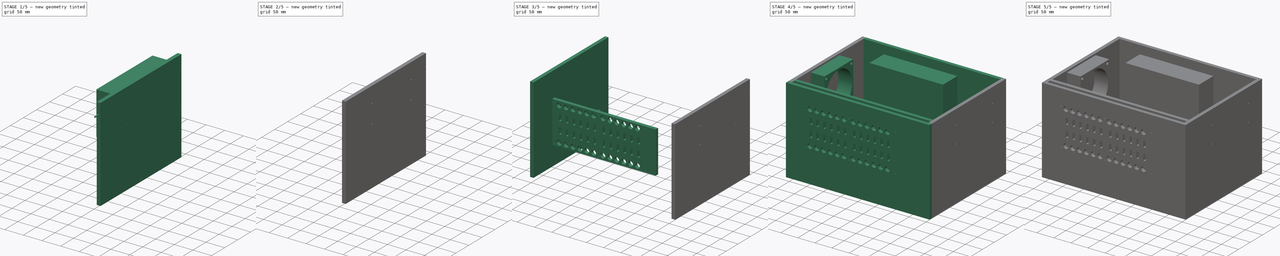
[diagram: build sequence overview — one tinted view per stage of 5, left to right]
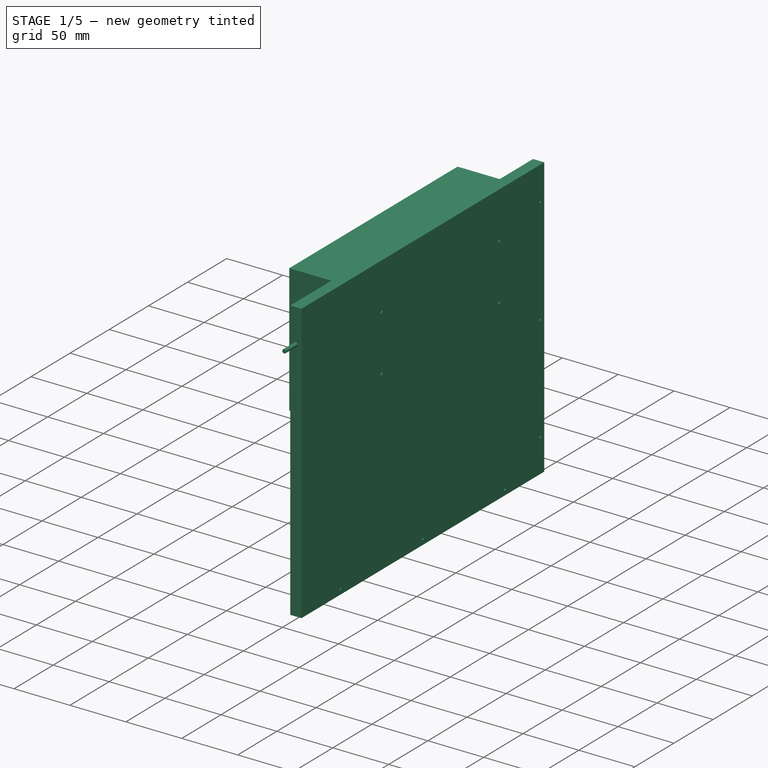
[diagram: stage 1 of 5 — iso view after this stage's code; geometry added in this stage tinted green]
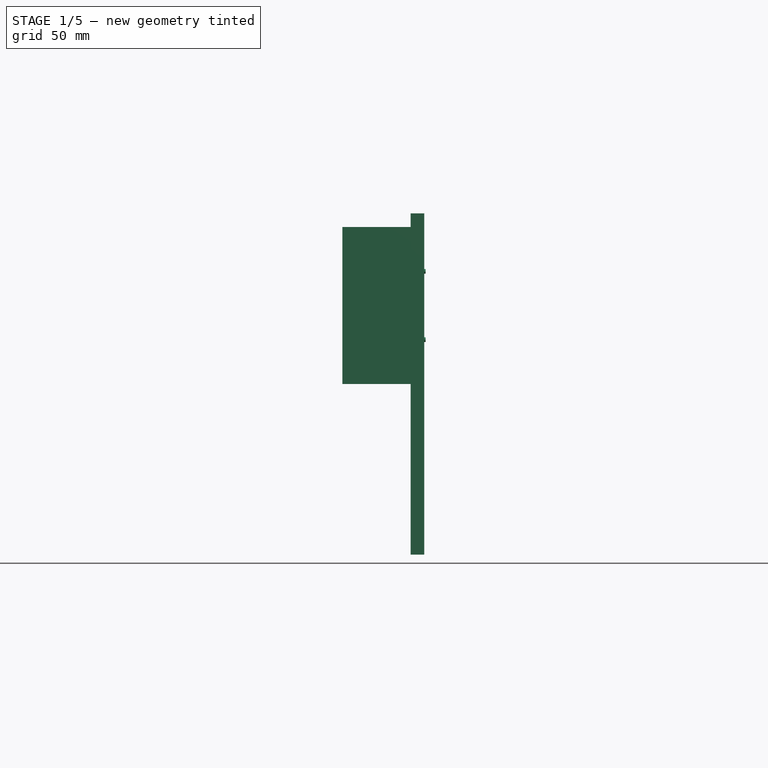
[diagram: stage 1 of 5 — front view after this stage's code; geometry added in this stage tinted green]
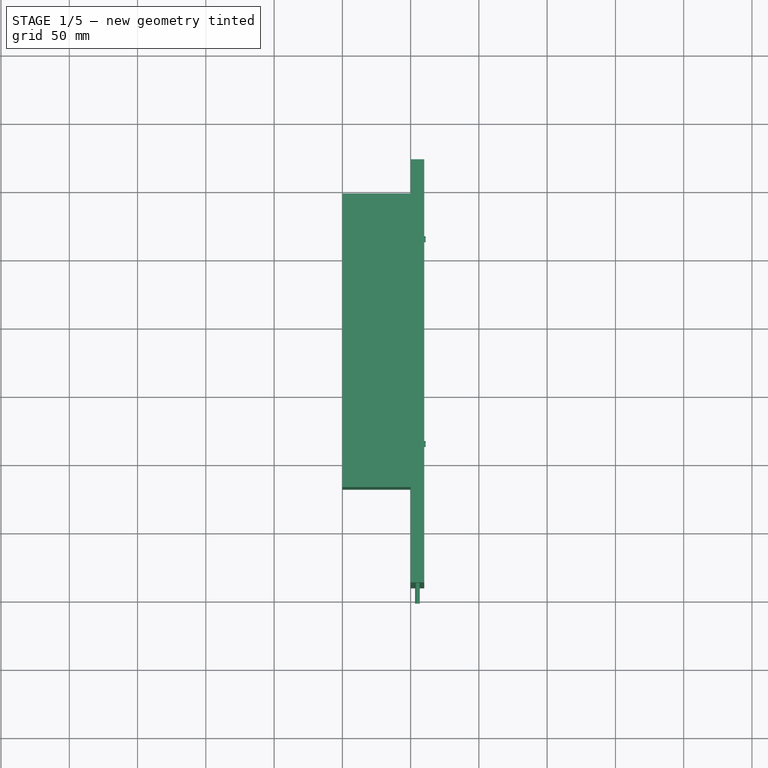
[diagram: stage 1 of 5 — top view after this stage's code; geometry added in this stage tinted green]
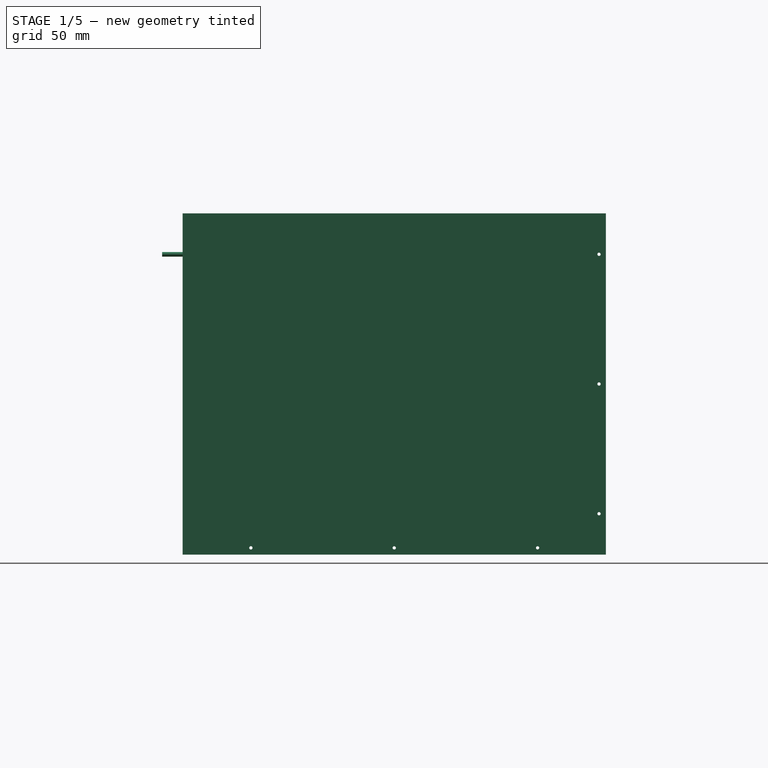
[diagram: stage 1 of 5 — right view after this stage's code; geometry added in this stage tinted green]
FCSTD DOCUMENT  (FreeCAD 0.16R6706 (Git))
Label: MSE-BOX
License: All rights reserved
LicenseURL: http://en.wikipedia.org/wiki/All_rights_reserved
objects: Sketcher::SketchObject×15, PartDesign::Pad×14, Part::Cylinder×12, Part::Cut×10, Drawing::FeatureViewPart×5, Part::MultiFuse×4, Drawing::FeatureViewPython×4, Part::Box×1, Drawing::FeaturePage×1
note: 70 computed .brp shape members not serialized (recipe doc carries the construction recipe); baked Part::Feature solids carry a one-line shape summary decoded from their .brp

FEATURE [Sketcher::SketchObject] Sketch005  label="右侧板图"
  Placement = pos=(200,0,0) rot=(0.57735,0.57735,0.57735;2.0944rad)
  sketch-geometry (14):
    g0: LineSegment StartX=-140 StartY=240 StartZ=0 EndX=170 EndY=240 EndZ=0
    g1: LineSegment StartX=170 StartY=-10 StartZ=0 EndX=-140 EndY=-10 EndZ=0
    g2: LineSegment StartX=-140 StartY=-10 StartZ=0 EndX=-140 EndY=240 EndZ=0
    g3: LineSegment StartX=170 StartY=240 StartZ=0 EndX=170 EndY=-10 EndZ=0
    g4: Circle CenterX=165 CenterY=210 CenterZ=0 NormalX=0 NormalY=0 NormalZ=1 Radius=1.2
    g5: Circle CenterX=165 CenterY=115 CenterZ=0 NormalX=0 NormalY=0 NormalZ=1 Radius=1.2
    g6: Circle CenterX=165 CenterY=20 CenterZ=0 NormalX=0 NormalY=0 NormalZ=1 Radius=1.2
    g7: Circle CenterX=120 CenterY=-5 CenterZ=0 NormalX=0 NormalY=0 NormalZ=1 Radius=1.2
    g8: Circle CenterX=15 CenterY=-5 CenterZ=0 NormalX=0 NormalY=0 NormalZ=1 Radius=1.2
    g9: Circle CenterX=-90 CenterY=-5 CenterZ=0 NormalX=0 NormalY=0 NormalZ=1 Radius=1.2
    g10: Circle CenterX=-37.5 CenterY=197.5 CenterZ=0 NormalX=0 NormalY=0 NormalZ=1 Radius=1.7
    g11: Circle CenterX=-37.5 CenterY=147.5 CenterZ=0 NormalX=0 NormalY=0 NormalZ=1 Radius=1.7
    g12: Circle CenterX=112.5 CenterY=147.5 CenterZ=0 NormalX=0 NormalY=0 NormalZ=1 Radius=1.7
    g13: Circle CenterX=112.5 CenterY=197.5 CenterZ=0 NormalX=0 NormalY=0 NormalZ=1 Radius=1.7
  constraints (41):
    c: Coincident(g1,g2)
    c: Coincident(g2,g0)
    c: Horizontal(g0)
    c: Horizontal(g1)
    c: DistanceX(g0,g0) = 310
    c: Perpendicular(g2,g1)
    c: DistanceX(g0) = 170
    c: Coincident(g3,g0)
    c: Coincident(g3,g1)
    c: Perpendicular(g3,g1,g1) = 4.71239
    c: Radius(g4) = 1.2
    c: Radius(g9) = 1.2
    c: DistanceY(g-1,g9) = -5
    c: Radius(g8) = 1.2
    c: Radius(g5) = 1.2
    c: Radius(g6) = 1.2
    c: Radius(g7) = 1.2
    c: DistanceY(g-1,g8) = -5
    c: DistanceY(g-1,g7) = -5
    c: Distance(g6,g3) = 5
    c: Distance(g5,g3) = 5
    c: Distance(g4,g3) = 5
    c: Radius(g10) = 1.7
    c: Distance(g10,g0) = 42.5
    c: Equal(g10,g11)
    c: Equal(g11,g12)
    c: Equal(g12,g13)
    c: Distance(g11,g0) = 92.5
    c: Distance(g11,g2) = 102.5
    c: Distance(g13,g3) = 57.5
    c: Distance(g13,g0) = 42.5
    c: Distance(g12,g3) = 57.5
    c: Distance(g12,g0) = 92.5
    c: Distance(g4,g0) = 30
    c: Distance(g6,g1) = 30
    c: Distance(g0,g1) = 250
    c: DistanceY(g1,g-1) = 10
    c: Distance(g5,g1) = 125
    c: Distance(g7,g3) = 50
    c: Distance(g9,g2) = 50
    c: Distance(g8,g2) = 155
FEATURE [PartDesign::Pad] Pad005  label="右面板"
  Length = 10
  Length2 = 100
  Placement = pos=(200,0,0) rot=(0.57735,0.57735,0.57735;2.0944rad)
  Sketch = -> Sketch005
  Type = 0
FEATURE [Part::Box] Box  label="5V电源"
  Height = 115
  Length = 50
  Placement = pos=(150,-70,115) rot=(0,0,1;0rad)
  Width = 215
FEATURE [Part::Cylinder] Cylinder002  label="5V-M4-左下"
  Angle = 360
  Height = 61
  Placement = pos=(150,-37.5,147.5) rot=(0,1,0;1.5708rad)
  Radius = 1.7
FEATURE [Part::Cylinder] Cylinder004  label="5V-M4-左上"
  Angle = 360
  Height = 61
  Placement = pos=(150,-37.5,197.5) rot=(0,1,0;1.5708rad)
  Radius = 1.7
FEATURE [Part::Cylinder] Cylinder005  label="5V-M4-右下"
  Angle = 360
  Height = 61
  Placement = pos=(150,112.5,147.5) rot=(0,1,0;1.5708rad)
  Radius = 1.7
FEATURE [Part::Cylinder] Cylinder006  label="5V-M4-右上"
  Angle = 360
  Height = 61
  Placement = pos=(150,112.5,197.5) rot=(0,1,0;1.5708rad)
  Radius = 1.7
FEATURE [Part::MultiFuse] Fusion002  label="5V电源加螺丝"
  Shapes = -> [Cylinder006,Cylinder005,Cylinder004,Cylinder002,Box]
FEATURE [Part::Cylinder] Cylinder012  label="右侧前003"
  Angle = 360
  Height = 20
  Placement = pos=(205,-135,210) rot=(1,0,0;1.5708rad)
  Radius = 1.7
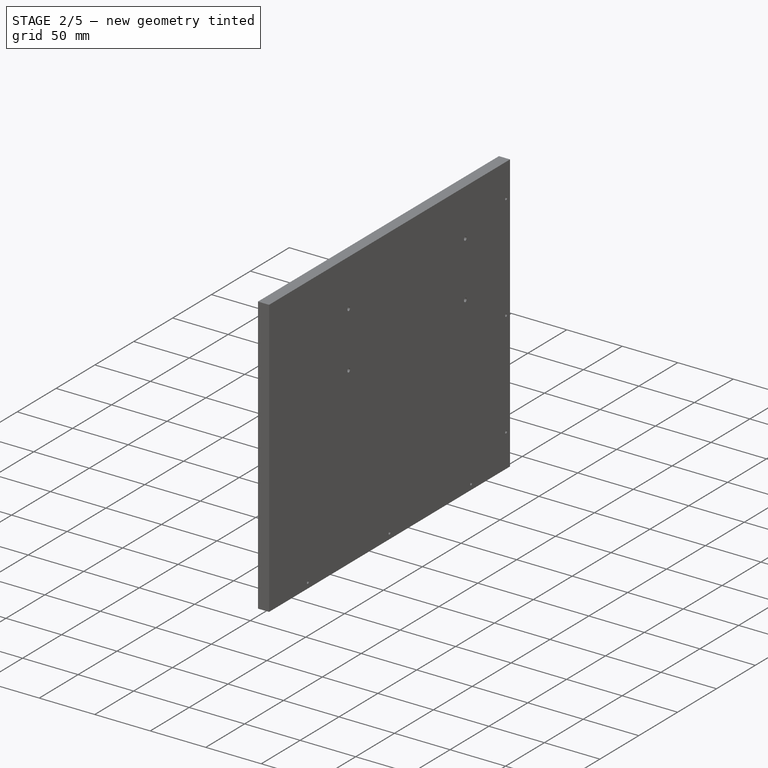
[diagram: stage 2 of 5 — iso view after this stage's code; geometry added in this stage tinted green]
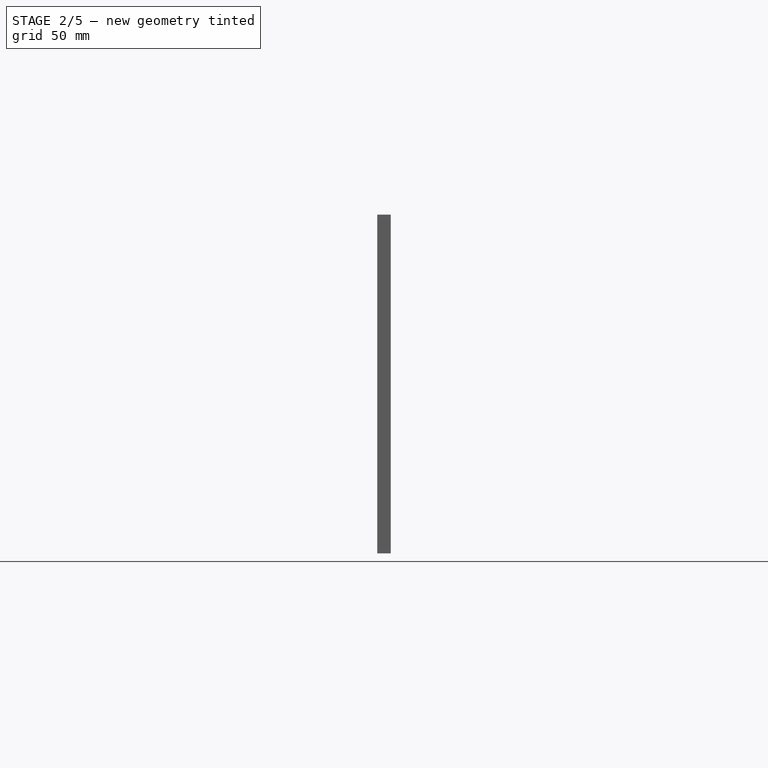
[diagram: stage 2 of 5 — front view after this stage's code; geometry added in this stage tinted green]
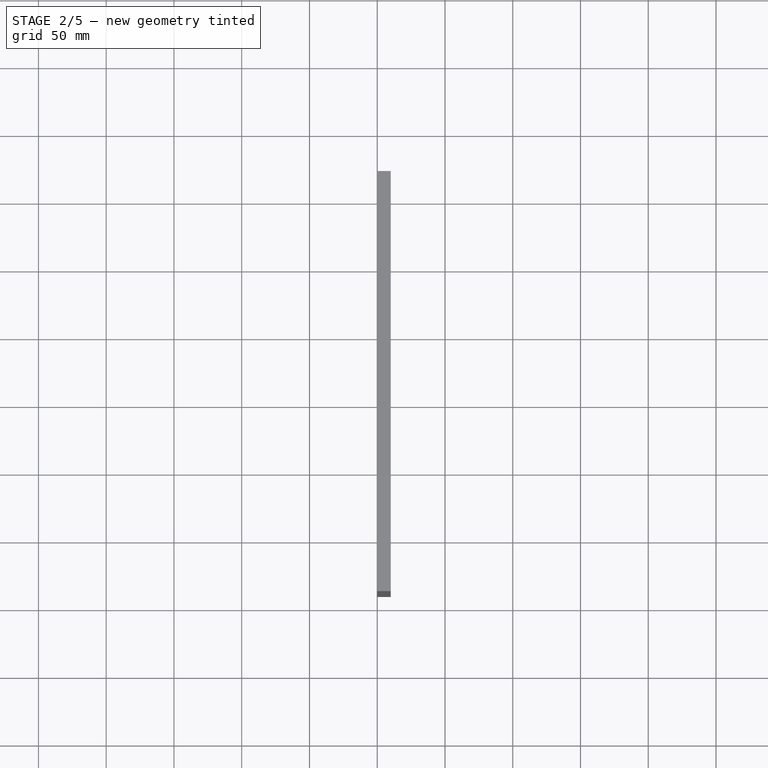
[diagram: stage 2 of 5 — top view after this stage's code; geometry added in this stage tinted green]
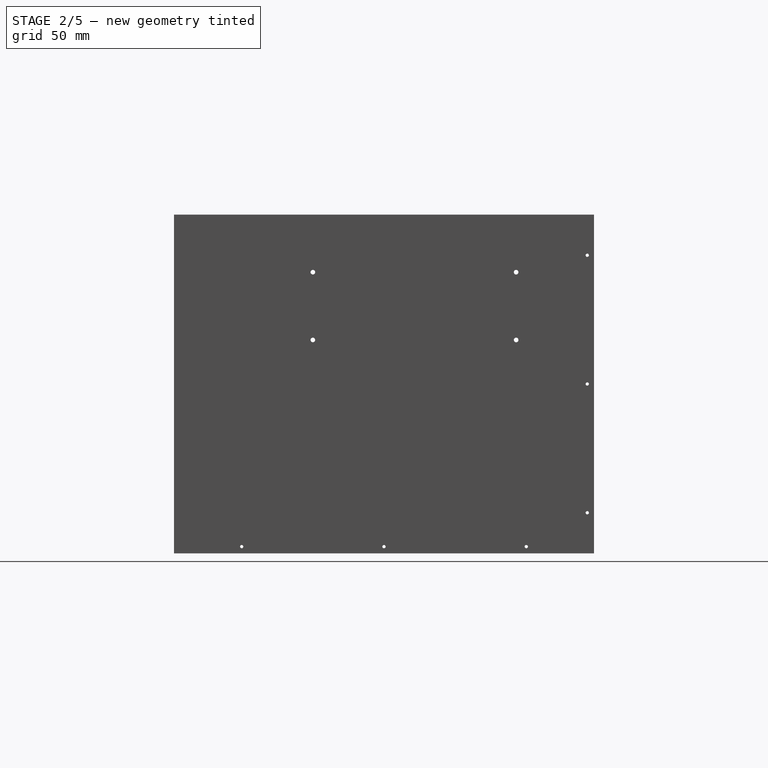
[diagram: stage 2 of 5 — right view after this stage's code; geometry added in this stage tinted green]
FEATURE [Part::Cut] Cut002  label="右侧开孔"
  Base = -> Pad005
  Tool = -> Fusion002
FEATURE [Part::Cylinder] Cylinder009  label="右侧-上003"
  Angle = 360
  Height = 20
  Placement = pos=(205,120,235) rot=(0,0,1;0rad)
  Radius = 1.7
FEATURE [Part::Cylinder] Cylinder010  label="右侧前001"
  Angle = 360
  Height = 20
  Placement = pos=(205,-135,20) rot=(1,0,0;1.5708rad)
  Radius = 1.7
FEATURE [Part::Cylinder] Cylinder011  label="右侧前002"
  Angle = 360
  Height = 20
  Placement = pos=(205,-135,115) rot=(1,0,0;1.5708rad)
  Radius = 1.7
FEATURE [Part::Cut] Cut007
  Base = -> Cut002
  Tool = -> Cylinder009
FEATURE [Part::Cut] Cut008
  Base = -> Cut002
  Tool = -> Cylinder010
FEATURE [Part::Cut] Cut009
  Base = -> Cut002
  Tool = -> Cylinder011
FEATURE [Part::Cut] Cut010
  Base = -> Cut002
  Tool = -> Cylinder012
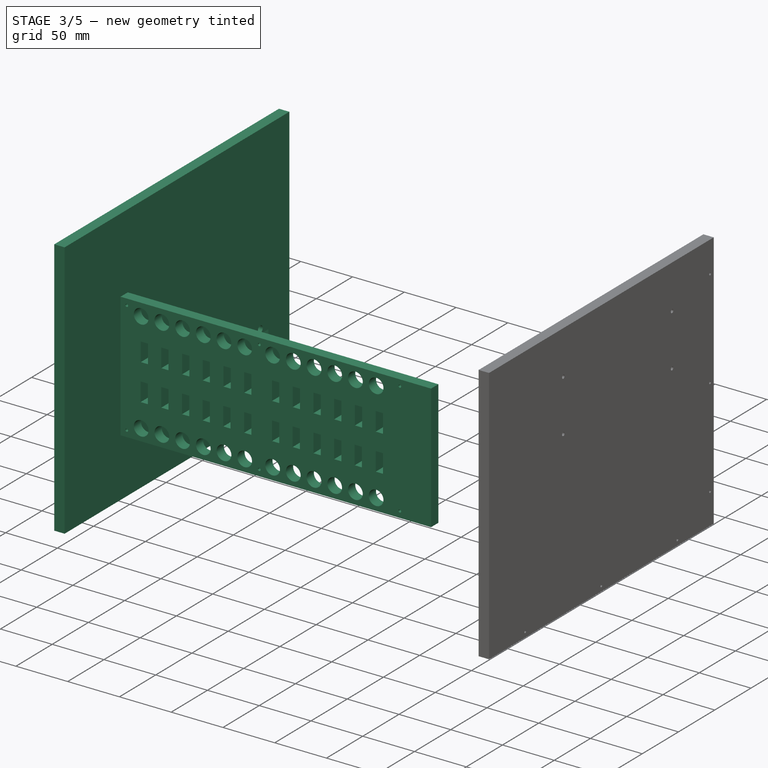
[diagram: stage 3 of 5 — iso view after this stage's code; geometry added in this stage tinted green]
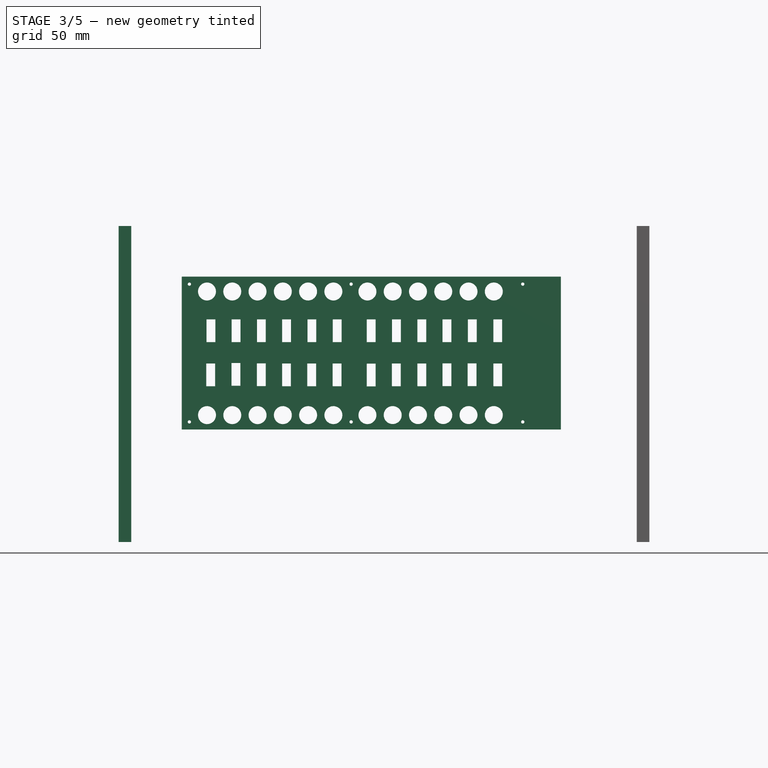
[diagram: stage 3 of 5 — front view after this stage's code; geometry added in this stage tinted green]
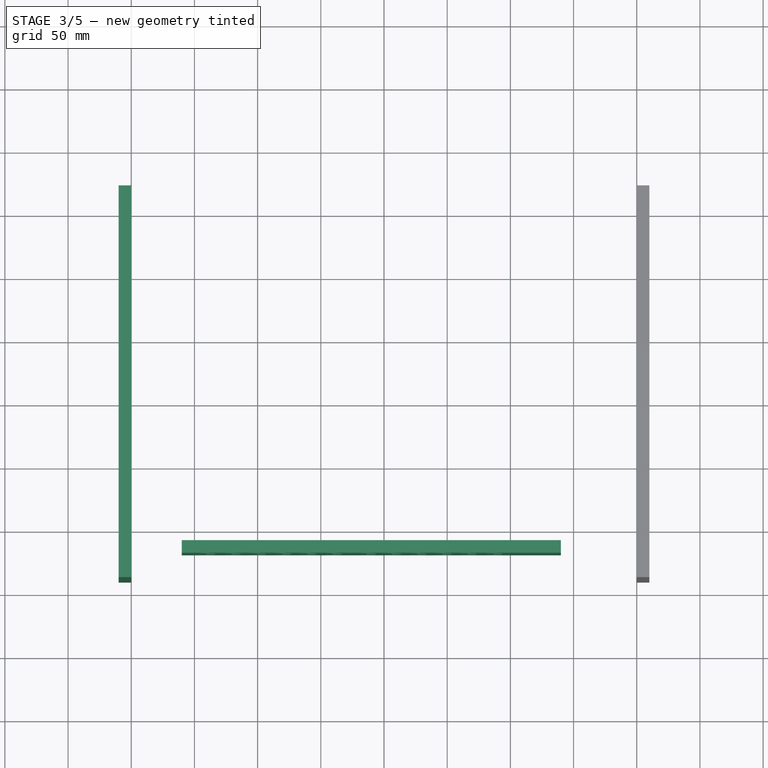
[diagram: stage 3 of 5 — top view after this stage's code; geometry added in this stage tinted green]
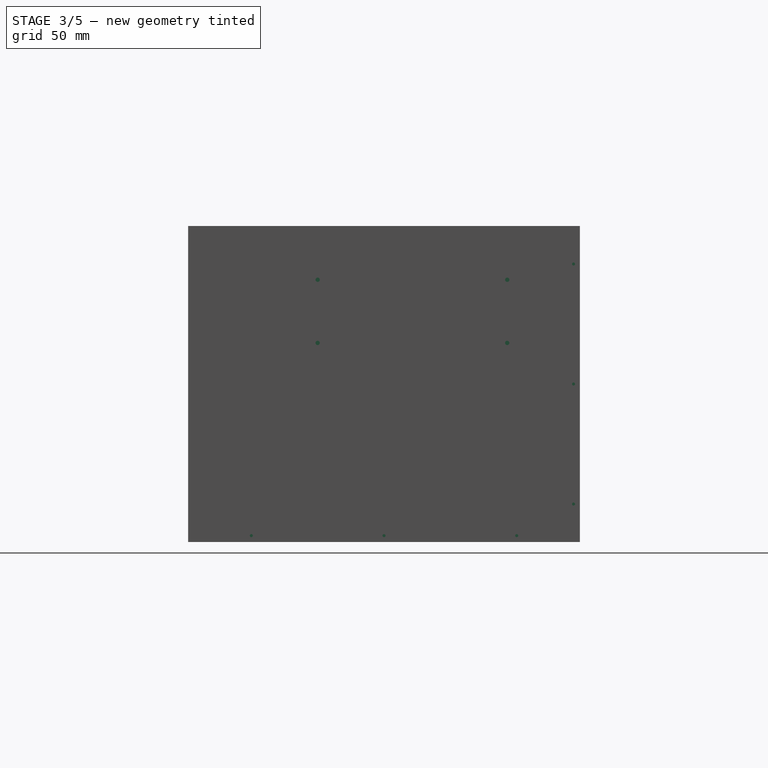
[diagram: stage 3 of 5 — right view after this stage's code; geometry added in this stage tinted green]
FEATURE [Sketcher::SketchObject] Sketch006  label="左侧面板"
  Placement = pos=(-210,0,0) rot=(0.57735,0.57735,0.57735;2.0944rad)
  sketch-geometry (4):
    g0: LineSegment StartX=-140 StartY=240 StartZ=0 EndX=170 EndY=240 EndZ=0
    g1: LineSegment StartX=170 StartY=240 StartZ=0 EndX=170 EndY=-10 EndZ=0
    g2: LineSegment StartX=170 StartY=-10 StartZ=0 EndX=-140 EndY=-10 EndZ=0
    g3: LineSegment StartX=-140 StartY=-10 StartZ=0 EndX=-140 EndY=240 EndZ=0
  constraints (12):
    c: Coincident(g0,g1)
    c: Coincident(g1,g2)
    c: Coincident(g2,g3)
    c: Coincident(g3,g0)
    c: Horizontal(g0)
    c: Horizontal(g2)
    c: Vertical(g1)
    c: Vertical(g3)
    c: DistanceY(g-1,g1) = -10
    c: DistanceX(g-1,g0) = 170
    c: DistanceX(g0,g-1) = 140
    c: DistanceY(g1,g1) = 250
FEATURE [PartDesign::Pad] Pad006  label="左侧"
  Length = 10
  Length2 = 100
  Placement = pos=(-210,0,0) rot=(0.57735,0.57735,0.57735;2.0944rad)
  Sketch = -> Sketch006
  Type = 0
FEATURE [Sketcher::SketchObject] Sketch012
  Placement = pos=(-213,130,40) rot=(0.57735,0.57735,0.57735;2.0944rad)
  sketch-geometry (6):
    g0: Circle CenterX=0 CenterY=25.3 CenterZ=0 NormalX=0 NormalY=0 NormalZ=1 Radius=3.3
    g1: Circle CenterX=0 CenterY=-25.3 CenterZ=0 NormalX=0 NormalY=0 NormalZ=1 Radius=3.3
    g2: LineSegment StartX=-11.1 StartY=21.25 StartZ=0 EndX=11.1 EndY=21.25 EndZ=0
    g3: LineSegment StartX=11.1 StartY=21.25 StartZ=0 EndX=11.1 EndY=-21.25 EndZ=0
    g4: LineSegment StartX=11.1 StartY=-21.25 StartZ=0 EndX=-11.1 EndY=-21.25 EndZ=0
    g5: LineSegment StartX=-11.1 StartY=-21.25 StartZ=0 EndX=-11.1 EndY=21.25 EndZ=0
  constraints (16):
    c: Symmetric(g0,g1,g-1)
    c: Radius(g0) = 3.3
    c: Equal(g0,g1)
    c: Coincident(g2,g3)
    c: Coincident(g3,g4)
    c: Coincident(g4,g5)
    c: Coincident(g5,g2)
    c: Horizontal(g2)
    c: Horizontal(g4)
    c: Vertical(g3)
    c: Vertical(g5)
    c: Symmetric(g2,g3,g-1)
    c: DistanceY(g3,g3) = 42.5
    c: DistanceY(g1,g0) = 50.6
    c: DistanceX(g2,g2) = 22.2
    c: Symmetric(g2,g2,g-2)
FEATURE [PartDesign::Pad] Pad012  label="品形插座"
  Length = 30
  Length2 = 100
  Placement = pos=(-213,130,40) rot=(0.57735,0.57735,0.57735;2.0944rad)
  Sketch = -> Sketch012
  Type = 0
FEATURE [Sketcher::SketchObject] Sketch015
  Placement = pos=(-160,-110,200) rot=(0.57735,0.57735,-0.57735;2.0944rad)
  sketch-geometry (134):
    g0: LineSegment StartX=0 StartY=300 StartZ=0 EndX=121 EndY=300 EndZ=0
    g1: LineSegment StartX=121 StartY=300 StartZ=0 EndX=121 EndY=0 EndZ=0
    g2: LineSegment StartX=121 StartY=0 StartZ=0 EndX=0 EndY=0 EndZ=0
    g3: LineSegment StartX=0 StartY=0 StartZ=0 EndX=0 EndY=300 EndZ=0
    g4: Circle CenterX=11.81 CenterY=19.93 CenterZ=0 NormalX=0 NormalY=0 NormalZ=1 Radius=7.1
    g5: Circle CenterX=11.81 CenterY=39.93 CenterZ=0 NormalX=0 NormalY=0 NormalZ=1 Radius=7.1
    g6: Circle CenterX=11.81 CenterY=59.93 CenterZ=0 NormalX=0 NormalY=0 NormalZ=1 Radius=7.1
    g7: Circle CenterX=11.81 CenterY=79.93 CenterZ=0 NormalX=0 NormalY=0 NormalZ=1 Radius=7.1
    g8: Circle CenterX=11.81 CenterY=99.93 CenterZ=0 NormalX=0 NormalY=0 NormalZ=1 Radius=7.1
    g9: Circle CenterX=11.81 CenterY=119.93 CenterZ=0 NormalX=0 NormalY=0 NormalZ=1 Radius=7.1
    g10: Circle CenterX=11.81 CenterY=146.89 CenterZ=0 NormalX=0 NormalY=0 NormalZ=1 Radius=7.1
    g11: Circle CenterX=11.81 CenterY=166.89 CenterZ=0 NormalX=0 NormalY=0 NormalZ=1 Radius=7.1
    g12: Circle CenterX=11.81 CenterY=186.89 CenterZ=0 NormalX=0 NormalY=0 NormalZ=1 Radius=7.1
    g13: Circle CenterX=11.81 CenterY=246.89 CenterZ=0 NormalX=0 NormalY=0 NormalZ=1 Radius=7.1
    g14: Circle CenterX=109.58 CenterY=246.89 CenterZ=0 NormalX=0 NormalY=0 NormalZ=1 Radius=7.1
    g15: Circle CenterX=11.81 CenterY=226.89 CenterZ=0 NormalX=0 NormalY=0 NormalZ=1 Radius=7.1
    g16: Circle CenterX=11.81 CenterY=206.89 CenterZ=0 NormalX=0 NormalY=0 NormalZ=1 Radius=7.1
    g17: Circle CenterX=109.58 CenterY=186.89 CenterZ=0 NormalX=0 NormalY=0 NormalZ=1 Radius=7.1
    g18: Circle CenterX=109.58 CenterY=226.89 CenterZ=0 NormalX=0 NormalY=0 NormalZ=1 Radius=7.1
    g19: Circle CenterX=109.58 CenterY=206.89 CenterZ=0 NormalX=0 NormalY=0 NormalZ=1 Radius=7.1
    g20: Circle CenterX=109.58 CenterY=166.89 CenterZ=0 NormalX=0 NormalY=0 NormalZ=1 Radius=7.1
    g21: Circle CenterX=109.63 CenterY=146.89 CenterZ=0 NormalX=0 NormalY=0 NormalZ=1 Radius=7.1
    g22: Circle CenterX=109.63 CenterY=119.95 CenterZ=0 NormalX=0 NormalY=0 NormalZ=1 Radius=7.1
    g23: Circle CenterX=109.63 CenterY=99.95 CenterZ=0 NormalX=0 NormalY=0 NormalZ=1 Radius=7.1
    g24: Circle CenterX=109.63 CenterY=79.95 CenterZ=0 NormalX=0 NormalY=0 NormalZ=1 Radius=7.1
    g25: Circle CenterX=109.63 CenterY=59.95 CenterZ=0 NormalX=0 NormalY=0 NormalZ=1 Radius=7.1
    g26: Circle CenterX=109.63 CenterY=39.95 CenterZ=0 NormalX=0 NormalY=0 NormalZ=1 Radius=7.1
    g27: Circle CenterX=109.63 CenterY=19.95 CenterZ=0 NormalX=0 NormalY=0 NormalZ=1 Radius=7.1
    g28: Circle CenterX=5.9944 CenterY=5.9944 CenterZ=0 NormalX=0 NormalY=0 NormalZ=1 Radius=1.3
    g29: Circle CenterX=5.9944 CenterY=134 CenterZ=0 NormalX=0 NormalY=0 NormalZ=1 Radius=1.3
    g30: Circle CenterX=5.9944 CenterY=269.79 CenterZ=0 NormalX=0 NormalY=0 NormalZ=1 Radius=1.3
    g31: Circle CenterX=115 CenterY=269.79 CenterZ=0 NormalX=0 NormalY=0 NormalZ=1 Radius=1.3
    g32: Circle CenterX=115 CenterY=5.9944 CenterZ=0 NormalX=0 NormalY=0 NormalZ=1 Radius=1.3
    g33: Circle CenterX=115 CenterY=134 CenterZ=0 NormalX=0 NormalY=0 NormalZ=1 Radius=1.3
    g34: LineSegment StartX=33.87 StartY=26.57 StartZ=0 EndX=51.87 EndY=26.57 EndZ=0
    g35: LineSegment StartX=51.87 StartY=26.57 StartZ=0 EndX=51.87 EndY=19.57 EndZ=0
    g36: LineSegment StartX=51.87 StartY=19.57 StartZ=0 EndX=33.87 EndY=19.57 EndZ=0
    g37: LineSegment StartX=33.87 StartY=19.57 StartZ=0 EndX=33.87 EndY=26.57 EndZ=0
    g38: LineSegment StartX=33.87 StartY=66.47 StartZ=0 EndX=51.87 EndY=66.47 EndZ=0
    g39: LineSegment StartX=51.87 StartY=66.47 StartZ=0 EndX=51.87 EndY=59.47 EndZ=0
    g40: LineSegment StartX=51.87 StartY=59.47 StartZ=0 EndX=33.87 EndY=59.47 EndZ=0
    g41: LineSegment StartX=33.87 StartY=59.47 StartZ=0 EndX=33.87 EndY=66.47 EndZ=0
    g42: LineSegment StartX=33.87 StartY=86.38 StartZ=0 EndX=51.87 EndY=86.38 EndZ=0
    g43: LineSegment StartX=51.87 StartY=86.38 StartZ=0 EndX=51.87 EndY=79.38 EndZ=0
    g44: LineSegment StartX=51.87 StartY=79.38 StartZ=0 EndX=33.87 EndY=79.38 EndZ=0
    g45: LineSegment StartX=33.87 StartY=79.38 StartZ=0 EndX=33.87 EndY=86.38 EndZ=0
    g46: LineSegment StartX=33.87 StartY=46.4 StartZ=0 EndX=51.87 EndY=46.4 EndZ=0
    g47: LineSegment StartX=51.87 StartY=46.4 StartZ=0 EndX=51.87 EndY=39.4 EndZ=0
    g48: LineSegment StartX=51.87 StartY=39.4 StartZ=0 EndX=33.87 EndY=39.4 EndZ=0
    g49: LineSegment StartX=33.87 StartY=39.4 StartZ=0 EndX=33.87 EndY=46.4 EndZ=0
    g50: LineSegment StartX=33.87 StartY=153.36 StartZ=0 EndX=51.87 EndY=153.36 EndZ=0
    g51: LineSegment StartX=51.87 StartY=153.36 StartZ=0 EndX=51.87 EndY=146.36 EndZ=0
    g52: LineSegment StartX=51.87 StartY=146.36 StartZ=0 EndX=33.87 EndY=146.36 EndZ=0
    g53: LineSegment StartX=33.87 StartY=146.36 StartZ=0 EndX=33.87 EndY=153.36 EndZ=0
    g54: LineSegment StartX=33.87 StartY=126.46 StartZ=0 EndX=51.87 EndY=126.46 EndZ=0
    g55: LineSegment StartX=51.87 StartY=126.46 StartZ=0 EndX=51.87 EndY=119.46 EndZ=0
    g56: LineSegment StartX=51.87 StartY=119.46 StartZ=0 EndX=33.87 EndY=119.46 EndZ=0
    g57: LineSegment StartX=33.87 StartY=119.46 StartZ=0 EndX=33.87 EndY=126.46 EndZ=0
    g58: LineSegment StartX=33.87 StartY=106.43 StartZ=0 EndX=51.87 EndY=106.43 EndZ=0
    g59: LineSegment StartX=51.87 StartY=106.43 StartZ=0 EndX=51.87 EndY=99.43 EndZ=0
    g60: LineSegment StartX=51.87 StartY=99.43 StartZ=0 EndX=33.87 EndY=99.43 EndZ=0
    g61: LineSegment StartX=33.87 StartY=99.43 StartZ=0 EndX=33.87 EndY=106.43 EndZ=0
    g62: LineSegment StartX=33.87 StartY=173.36 StartZ=0 EndX=51.87 EndY=173.36 EndZ=0
    g63: LineSegment StartX=51.87 StartY=173.36 StartZ=0 EndX=51.87 EndY=166.36 EndZ=0
    g64: LineSegment StartX=51.87 StartY=166.36 StartZ=0 EndX=33.87 EndY=166.36 EndZ=0
    g65: LineSegment StartX=33.87 StartY=166.36 StartZ=0 EndX=33.87 EndY=173.36 EndZ=0
    g66: LineSegment StartX=51.87 StartY=213.34 StartZ=0 EndX=33.87 EndY=213.34 EndZ=0
    g67: LineSegment StartX=33.87 StartY=213.34 StartZ=0 EndX=33.87 EndY=206.34 EndZ=0
    g68: LineSegment StartX=33.87 StartY=206.34 StartZ=0 EndX=51.87 EndY=206.34 EndZ=0
    g69: LineSegment StartX=51.87 StartY=206.34 StartZ=0 EndX=51.87 EndY=213.34 EndZ=0
    g70: LineSegment StartX=33.87 StartY=193.39 StartZ=0 EndX=51.87 EndY=193.39 EndZ=0
    g71: LineSegment StartX=51.87 StartY=193.39 StartZ=0 EndX=51.87 EndY=186.39 EndZ=0
    g72: LineSegment StartX=51.87 StartY=186.39 StartZ=0 EndX=33.87 EndY=186.39 EndZ=0
    g73: LineSegment StartX=33.87 StartY=186.39 StartZ=0 EndX=33.87 EndY=193.39 EndZ=0
    g74: LineSegment StartX=33.87 StartY=253.52 StartZ=0 EndX=51.87 EndY=253.52 EndZ=0
    g75: LineSegment StartX=51.87 StartY=253.52 StartZ=0 EndX=51.87 EndY=246.52 EndZ=0
    g76: LineSegment StartX=51.87 StartY=246.52 StartZ=0 EndX=33.87 EndY=246.52 EndZ=0
    g77: LineSegment StartX=33.87 StartY=246.52 StartZ=0 EndX=33.87 EndY=253.52 EndZ=0
    g78: LineSegment StartX=33.8701 StartY=233.4 StartZ=0 EndX=51.8701 EndY=233.4 EndZ=0
    g79: LineSegment StartX=51.8701 StartY=233.4 StartZ=0 EndX=51.8701 EndY=226.4 EndZ=0
    g80: LineSegment StartX=51.8701 StartY=226.4 StartZ=0 EndX=33.8701 EndY=226.4 EndZ=0
    g81: LineSegment StartX=33.8701 StartY=226.4 StartZ=0 EndX=33.8701 EndY=233.4 EndZ=0
    g82: LineSegment StartX=68.82 StartY=26.37 StartZ=0 EndX=86.82 EndY=26.37 EndZ=0
    g83: LineSegment StartX=86.82 StartY=26.37 StartZ=0 EndX=86.82 EndY=19.37 EndZ=0
    g84: LineSegment StartX=86.82 StartY=19.37 StartZ=0 EndX=68.82 EndY=19.37 EndZ=0
    g85: LineSegment StartX=68.82 StartY=19.37 StartZ=0 EndX=68.82 EndY=26.37 EndZ=0
    g86: LineSegment StartX=68.3352 StartY=46.33 StartZ=0 EndX=86.3352 EndY=46.33 EndZ=0
    g87: LineSegment StartX=86.3352 StartY=46.33 StartZ=0 EndX=86.3352 EndY=39.33 EndZ=0
    g88: LineSegment StartX=86.3352 StartY=39.33 StartZ=0 EndX=68.3352 EndY=39.33 EndZ=0
    g89: LineSegment StartX=68.3352 StartY=39.33 StartZ=0 EndX=68.3352 EndY=46.33 EndZ=0
    g90: LineSegment StartX=68.6925 StartY=66.4 StartZ=0 EndX=86.6925 EndY=66.4 EndZ=0
    g91: LineSegment StartX=86.6925 StartY=66.4 StartZ=0 EndX=86.6925 EndY=59.4 EndZ=0
    g92: LineSegment StartX=86.6925 StartY=59.4 StartZ=0 EndX=68.6925 EndY=59.4 EndZ=0
    g93: LineSegment StartX=68.6925 StartY=59.4 StartZ=0 EndX=68.6925 EndY=66.4 EndZ=0
    g94: LineSegment StartX=68.7894 StartY=86.34 StartZ=0 EndX=86.7894 EndY=86.34 EndZ=0
    g95: LineSegment StartX=86.7894 StartY=86.34 StartZ=0 EndX=86.7894 EndY=79.34 EndZ=0
    g96: LineSegment StartX=86.7894 StartY=79.34 StartZ=0 EndX=68.7894 EndY=79.34 EndZ=0
    g97: LineSegment StartX=68.7894 StartY=79.34 StartZ=0 EndX=68.7894 EndY=86.34 EndZ=0
    g98: LineSegment StartX=68.733 StartY=106.27 StartZ=0 EndX=86.733 EndY=106.27 EndZ=0
    g99: LineSegment StartX=86.733 StartY=106.27 StartZ=0 EndX=86.733 EndY=99.27 EndZ=0
    g100: LineSegment StartX=86.733 StartY=99.27 StartZ=0 EndX=68.733 EndY=99.27 EndZ=0
    g101: LineSegment StartX=68.733 StartY=99.27 StartZ=0 EndX=68.733 EndY=106.27 EndZ=0
    g102: LineSegment StartX=68.82 StartY=126.36 StartZ=0 EndX=86.82 EndY=126.36 EndZ=0
    g103: LineSegment StartX=86.82 StartY=126.36 StartZ=0 EndX=86.82 EndY=119.36 EndZ=0
    g104: LineSegment StartX=86.82 StartY=119.36 StartZ=0 EndX=68.82 EndY=119.36 EndZ=0
    g105: LineSegment StartX=68.82 StartY=119.36 StartZ=0 EndX=68.82 EndY=126.36 EndZ=0
    g106: LineSegment StartX=68.8995 StartY=153.372 StartZ=0 EndX=86.8995 EndY=153.372 EndZ=0
    g107: LineSegment StartX=86.8995 StartY=153.372 StartZ=0 EndX=86.8995 EndY=146.372 EndZ=0
    g108: LineSegment StartX=86.8995 StartY=146.372 StartZ=0 EndX=68.8995 EndY=146.372 EndZ=0
    g109: LineSegment StartX=68.8995 StartY=146.372 StartZ=0 EndX=68.8995 EndY=153.372 EndZ=0
    g110: LineSegment StartX=68.7731 StartY=173.267 StartZ=0 EndX=86.7731 EndY=173.267 EndZ=0
    g111: LineSegment StartX=86.7731 StartY=173.267 StartZ=0 EndX=86.7731 EndY=166.267 EndZ=0
    g112: LineSegment StartX=86.7731 StartY=166.267 StartZ=0 EndX=68.7731 EndY=166.267 EndZ=0
    g113: LineSegment StartX=68.7731 StartY=166.267 StartZ=0 EndX=68.7731 EndY=173.267 EndZ=0
    g114: LineSegment StartX=68.781 StartY=193.39 StartZ=0 EndX=86.781 EndY=193.39 EndZ=0
    g115: LineSegment StartX=86.781 StartY=193.39 StartZ=0 EndX=86.781 EndY=186.39 EndZ=0
    g116: LineSegment StartX=86.781 StartY=186.39 StartZ=0 EndX=68.781 EndY=186.39 EndZ=0
    g117: LineSegment StartX=68.781 StartY=186.39 StartZ=0 EndX=68.781 EndY=193.39 EndZ=0
    g118: LineSegment StartX=68.6717 StartY=213.338 StartZ=0 EndX=86.6717 EndY=213.338 EndZ=0
    g119: LineSegment StartX=86.6717 StartY=213.338 StartZ=0 EndX=86.6717 EndY=206.338 EndZ=0
    g120: LineSegment StartX=86.6717 StartY=206.338 StartZ=0 EndX=68.6717 EndY=206.338 EndZ=0
    g121: LineSegment StartX=68.6717 StartY=206.338 StartZ=0 EndX=68.6717 EndY=213.338 EndZ=0
    g122: LineSegment StartX=68.6927 StartY=233.2 StartZ=0 EndX=86.6927 EndY=233.2 EndZ=0
    g123: LineSegment StartX=86.6927 StartY=233.2 StartZ=0 EndX=86.6927 EndY=226.2 EndZ=0
    g124: LineSegment StartX=86.6927 StartY=226.2 StartZ=0 EndX=68.6927 EndY=226.2 EndZ=0
    g125: LineSegment StartX=68.6927 StartY=226.2 StartZ=0 EndX=68.6927 EndY=233.2 EndZ=0
    g126: LineSegment StartX=68.82 StartY=253.52 StartZ=0 EndX=86.82 EndY=253.52 EndZ=0
    g127: LineSegment StartX=86.82 StartY=253.52 StartZ=0 EndX=86.82 EndY=246.52 EndZ=0
    g128: LineSegment StartX=86.82 StartY=246.52 StartZ=0 EndX=68.82 EndY=246.52 EndZ=0
    g129: LineSegment StartX=68.82 StartY=246.52 StartZ=0 EndX=68.82 EndY=253.52 EndZ=0
    g130: LineSegment StartX=-39.8783 StartY=360.002 StartZ=0 EndX=210.122 EndY=360.002 EndZ=0
    g131: LineSegment StartX=210.122 StartY=360.002 StartZ=0 EndX=210.122 EndY=-39.9981 EndZ=0
    g132: LineSegment StartX=210.122 StartY=-39.9981 StartZ=0 EndX=-39.8783 EndY=-39.9981 EndZ=0
    g133: LineSegment StartX=-39.8783 StartY=-39.9981 StartZ=0 EndX=-39.8783 EndY=360.002 EndZ=0
  constraints (346):
    c: Coincident(g0,g1)
    c: Coincident(g1,g2)
    c: Coincident(g2,g3)
    c: Coincident(g3,g0)
    c: Horizontal(g0)
    c: Horizontal(g2)
    c: Vertical(g1)
    c: Vertical(g3)
    c: Coincident(g2,g-1)
    c: DistanceX(g0) = 121
    c: DistanceY(g0) = 300
    c: Radius(g4) = 7.1
    c: DistanceX(g4) = 11.81
    c: DistanceY(g4) = 19.93
    c: Equal(g5,g6)
    c: DistanceY(g5) = 39.93
    c: DistanceY(g6) = 59.93
    c: Equal(g6,g7)
    c: DistanceY(g7) = 79.93
    c: Equal(g7,g8)
    c: Equal(g8,g9)
    c: Equal(g9,g10)
    c: DistanceY(g8) = 99.93
    c: DistanceY(g9) = 119.93
    c: DistanceY(g10) = 146.89
    c: Equal(g10,g11)
    c: Equal(g11,g12)
    c: DistanceY(g11) = 166.89
    c: DistanceY(g12) = 186.89
    c: Equal(g12,g16)
    c: Equal(g16,g15)
    c: Equal(g15,g14)
    c: Equal(g14,g13)
    c: DistanceY(g16) = 206.89
    c: DistanceY(g15) = 226.89
    c: DistanceY(g13) = 246.89
    c: DistanceX(g14) = 109.58
    c: DistanceY(g14) = 246.89
    c: DistanceX(g18) = 109.58
    c: DistanceY(g18) = 226.89
    c: Equal(g14,g18)
    c: Equal(g18,g19)
    c: Equal(g19,g17)
    c: Equal(g17,g20)
    c: Equal(g20,g21)
    c: Equal(g21,g22)
    c: Equal(g22,g23)
    c: Equal(g23,g24)
    c: Equal(g24,g25)
    c: Equal(g25,g26)
    c: Equal(g26,g27)
    c: DistanceX(g19) = 109.58
    c: DistanceY(g19) = 206.89
    c: DistanceX(g27) = 109.63
    c: DistanceY(g27) = 19.95
    c: DistanceY(g26) = 39.95
    c: DistanceY(g25) = 59.95
    c: DistanceY(g24) = 79.95
    c: DistanceY(g23) = 99.95
    c: DistanceY(g22) = 119.95
    c: DistanceX(g21) = 109.63
    c: DistanceY(g21) = 146.89
    c: DistanceX(g20) = 109.58
    c: DistanceY(g20) = 166.89
    c: DistanceX(g17) = 109.58
    c: DistanceY(g17) = 186.89
    c: Radius(g28) = 1.3
    c: DistanceX(g28) = 5.9944
    c: DistanceY(g28) = 5.9944
    c: Equal(g28,g29)
    c: Equal(g29,g30)
    c: Equal(g30,g32)
    c: Equal(g32,g33)
    c: Equal(g33,g31)
    c: Radius(g5) = 7.1
    c: DistanceX(g29) = 5.9944
    c: DistanceY(g29) = 134
    c: DistanceX(g30) = 5.9944
    c: DistanceY(g30) = 269.79
    c: DistanceX(g32) = 115
    c: DistanceY(g32) = 5.9944
    c: DistanceX(g33) = 115
    c: DistanceY(g33) = 134
    c: DistanceX(g31) = 115
    c: DistanceY(g31) = 269.79
    c: Coincident(g34,g35)
    c: Coincident(g35,g36)
    c: Coincident(g36,g37)
    c: Coincident(g37,g34)
    c: Horizontal(g34)
    c: Horizontal(g36)
    c: Vertical(g35)
    c: Vertical(g37)
    c: DistanceX(g34) = 51.87
    c: Coincident(g38,g39)
    c: Coincident(g39,g40)
    c: Coincident(g40,g41)
    c: Coincident(g41,g38)
    c: Horizontal(g38)
    c: Horizontal(g40)
    c: Vertical(g39)
    c: Vertical(g41)
    c: DistanceX(g36,g36) = 18
    c: DistanceY(g35,g35) = 7
    c: Equal(g36,g38)
    c: Equal(g35,g39)
    c: Coincident(g42,g43)
    c: Coincident(g43,g44)
    c: Coincident(g44,g45)
    c: Coincident(g45,g42)
    c: Horizontal(g42)
    c: Horizontal(g44)
    c: Vertical(g43)
    c: Vertical(g45)
    c: Coincident(g46,g47)
    c: Coincident(g47,g48)
    c: Coincident(g48,g49)
    c: Coincident(g49,g46)
    c: Horizontal(g46)
    c: Horizontal(g48)
    c: Vertical(g47)
    c: Vertical(g49)
    c: Coincident(g50,g51)
    c: Coincident(g51,g52)
    c: Coincident(g52,g53)
    c: Coincident(g53,g50)
    c: Horizontal(g50)
    c: Horizontal(g52)
    c: Vertical(g51)
    c: Vertical(g53)
    c: Coincident(g54,g55)
    c: Coincident(g55,g56)
    c: Coincident(g56,g57)
    c: Coincident(g57,g54)
    c: Horizontal(g54)
    c: Horizontal(g56)
    c: Vertical(g55)
    c: Vertical(g57)
    c: Coincident(g58,g59)
    c: Coincident(g59,g60)
    c: Coincident(g60,g61)
    c: Coincident(g61,g58)
    c: Horizontal(g58)
    c: Horizontal(g60)
    c: Vertical(g59)
    c: Vertical(g61)
    c: Coincident(g62,g63)
    c: Coincident(g63,g64)
    c: Coincident(g64,g65)
    c: Coincident(g65,g62)
    c: Horizontal(g62)
    c: Horizontal(g64)
    c: Vertical(g63)
    c: Vertical(g65)
    c: Coincident(g66,g67)
    c: Coincident(g67,g68)
    c: Coincident(g68,g69)
    c: Coincident(g69,g66)
    c: Horizontal(g66)
    c: Horizontal(g68)
    c: Vertical(g67)
    c: Vertical(g69)
    c: Coincident(g70,g71)
    c: Coincident(g71,g72)
    c: Coincident(g72,g73)
    c: Coincident(g73,g70)
    c: Horizontal(g70)
    c: Horizontal(g72)
    c: Vertical(g71)
    c: Vertical(g73)
    c: Coincident(g74,g75)
    c: Coincident(g75,g76)
    c: Coincident(g76,g77)
    c: Coincident(g77,g74)
    c: Horizontal(g74)
    c: Horizontal(g76)
    c: Vertical(g75)
    c: Vertical(g77)
    c: Coincident(g78,g79)
    c: Coincident(g79,g80)
    c: Coincident(g80,g81)
    c: Coincident(g81,g78)
    c: Horizontal(g78)
    c: Horizontal(g80)
    c: Vertical(g79)
    c: Vertical(g81)
    c: Equal(g38,g42)
    c: Equal(g42,g58)
    c: Equal(g58,g46)
    c: Equal(g39,g59)
    c: Equal(g59,g43)
    c: Equal(g43,g47)
    c: Equal(g36,g64)
    c: Equal(g64,g54)
    c: Equal(g54,g50)
    c: Equal(g50,g70)
    c: Equal(g70,g66)
    c: Equal(g66,g78)
    c: Equal(g78,g74)
    c: Equal(g35,g63)
    c: Equal(g63,g55)
    c: Equal(g55,g51)
    c: Equal(g51,g71)
    c: Equal(g71,g67)
    c: Equal(g67,g79)
    c: Equal(g79,g77)
    c: DistanceY(g54) = 126.46
    c: Coincident(g82,g83)
    c: Coincident(g83,g84)
    c: Coincident(g84,g85)
    c: Coincident(g85,g82)
    c: Horizontal(g82)
    c: Horizontal(g84)
    c: Vertical(g83)
    c: Vertical(g85)
    c: Coincident(g86,g87)
    c: Coincident(g87,g88)
    c: Coincident(g88,g89)
    c: Coincident(g89,g86)
    c: Horizontal(g86)
    c: Horizontal(g88)
    c: Vertical(g87)
    c: Vertical(g89)
    c: Coincident(g90,g91)
    c: Coincident(g91,g92)
    c: Coincident(g92,g93)
    c: Coincident(g93,g90)
    c: Horizontal(g90)
    c: Horizontal(g92)
    c: Vertical(g91)
    c: Vertical(g93)
    c: Coincident(g94,g95)
    c: Coincident(g95,g96)
    c: Coincident(g96,g97)
    c: Coincident(g97,g94)
    c: Horizontal(g94)
    c: Horizontal(g96)
    c: Vertical(g95)
    c: Vertical(g97)
    c: Coincident(g98,g99)
    c: Coincident(g99,g100)
    c: Coincident(g100,g101)
    c: Coincident(g101,g98)
    c: Horizontal(g98)
    c: Horizontal(g100)
    c: Vertical(g99)
    c: Vertical(g101)
    c: Coincident(g102,g103)
    c: Coincident(g103,g104)
    c: Coincident(g104,g105)
    c: Coincident(g105,g102)
    c: Horizontal(g102)
    c: Horizontal(g104)
    c: Vertical(g103)
    c: Vertical(g105)
    c: Coincident(g106,g107)
    c: Coincident(g107,g108)
    c: Coincident(g108,g109)
    c: Coincident(g109,g106)
    c: Horizontal(g106)
    c: Horizontal(g108)
    c: Vertical(g107)
    c: Vertical(g109)
    c: Coincident(g110,g111)
    c: Coincident(g111,g112)
    c: Coincident(g112,g113)
    c: Coincident(g113,g110)
    c: Horizontal(g110)
    c: Horizontal(g112)
    c: Vertical(g111)
    c: Vertical(g113)
    c: Coincident(g114,g115)
    c: Coincident(g115,g116)
    c: Coincident(g116,g117)
    c: Coincident(g117,g114)
    c: Horizontal(g114)
    c: Vertical(g115)
    c: Vertical(g117)
    c: Coincident(g118,g119)
    c: Coincident(g119,g120)
    c: Coincident(g120,g121)
    c: Coincident(g121,g118)
    c: Horizontal(g118)
    c: Vertical(g119)
    c: Vertical(g121)
    c: Coincident(g122,g123)
    c: Coincident(g123,g124)
    c: Coincident(g124,g125)
    c: Coincident(g125,g122)
    c: Horizontal(g122)
    c: Horizontal(g124)
    c: Vertical(g123)
    c: Vertical(g125)
    c: Coincident(g126,g127)
    c: Coincident(g127,g128)
    c: Coincident(g128,g129)
    c: Coincident(g129,g126)
    c: Horizontal(g126)
    c: Horizontal(g128)
    c: Vertical(g127)
    c: Vertical(g129)
    c: Equal(g74,g126)
    c: Equal(g75,g127)
    c: Equal(g79,g125)
    c: Equal(g78,g122)
    c: Equal(g124,g118)
    c: Equal(g118,g114)
    c: Equal(g114,g110)
    c: Equal(g129,g125)
    c: Equal(g123,g119)
    c: Equal(g119,g115)
    c: Equal(g115,g111)
    c: Equal(g112,g106)
    c: Equal(g106,g104)
    c: Equal(g104,g100)
    c: Equal(g100,g96)
    c: Equal(g96,g92)
    c: Equal(g92,g88)
    c: Equal(g88,g84)
    c: Equal(g125,g121)
    c: Equal(g121,g117)
    c: Equal(g117,g113)
    c: Equal(g113,g109)
    c: Equal(g109,g105)
    c: Equal(g105,g101)
    c: Equal(g101,g97)
    c: Equal(g101,g93)
    c: Equal(g93,g89)
    c: Equal(g89,g85)
    c: DistanceX(g126) = 86.82
    c: DistanceY(g102) = 126.36
    c: DistanceY(g98) = 106.27
    c: DistanceY(g94) = 86.34
    c: DistanceY(g90) = 66.4
    c: DistanceY(g86) = 46.33
    c: DistanceY(g82) = 26.37
    c: Coincident(g130,g131)
    c: Coincident(g131,g132)
    c: Coincident(g132,g133)
    c: Coincident(g133,g130)
    c: Horizontal(g130)
    c: Horizontal(g132)
    c: Vertical(g131)
    c: Vertical(g133)
    c: DistanceX(g130,g130) = 250
    c: DistanceY(g133,g133) = 400
FEATURE [PartDesign::Pad] Pad015  label="电源板备份"
  Length = 10
  Length2 = 100
  Placement = pos=(-160,-110,200) rot=(0.57735,0.57735,-0.57735;2.0944rad)
  Sketch = -> Sketch015
  Type = 0
FEATURE [Sketcher::SketchObject] Sketch016  label="边框打孔"
  Placement = pos=(0,0,0) rot=(0.57735,0.57735,0.57735;2.0944rad)
FEATURE [Part::Cut] Cut004  label="左侧开孔"
  Base = -> Pad006
  Tool = -> Pad012
FEATURE [Part::Cylinder] Cylinder007  label="右侧-上001"
  Angle = 360
  Height = 20
  Placement = pos=(205,-90,235) rot=(0,0,1;0rad)
  Radius = 1.7
FEATURE [Part::Cylinder] Cylinder008  label="右侧-上002"
  Angle = 360
  Height = 20
  Placement = pos=(205,15,235) rot=(0,0,1;0rad)
  Radius = 1.7
FEATURE [Part::Cut] Cut005
  Base = -> Cut002
  Tool = -> Cylinder007
FEATURE [Part::Cut] Cut006
  Base = -> Cut002
  Tool = -> Cylinder008
FEATURE [Part::MultiFuse] Fusion003  label="右侧开孔001"
  Shapes = -> [Cut005,Cut007,Cut006,Cut008,Cut009,Cut010]
FEATURE [Drawing::FeatureViewPart] Ortho  label="Ortho_0_0"
  Direction = (1,0,0)
  HiddenWidth = 0.15
  LineWidth = 0.35
  Rotation = -90
  Scale = 0.25
  ShowHiddenLines = false
  ShowSmoothLines = false
  Source = -> Fusion003
  Tolerance = 0.05
  ViewResult = <g id="Ortho_0_0"\n   transform="rotate(-90,144.75,114.75) translate(144.75,114.75) scale(0.25,0.25)"\n  >\n<g   stroke="rgb(0, 0, 0)"\n   stroke-width="1.4"\n   stroke-linecap="butt"\n   stroke-linejoin="miter"\n   fill="none"\n   transform="scale(1,-1)"\n  >\n<path id= "1" d=" M 240 140 L 240 -170 " />\n<path id= "2" d=" M -10 140 L 240 140 " />\n<path id= "3" d=" M 240 -170 L -10 -170 " />\n<path id= "4" d=" M -10 -170 L -10 140 " />\n<path d="M147.5 35.8 A1.7 1.7 0 1 1 145.8 37.5" /><path d="M145.8 37.5 A1.7 1.7 0 0 1 147.5 35.8" /><path d="M147.5 -114.2 A1.7 1.7 0 1 1 145.8 -112.5" /><path d="M145.8 -112.5 A1.7 1.7 0 0 1 147.5 -114.2" /><circle cx ="-5" cy ="-120" r ="1.2" /><circle cx ="-5" cy ="-15" r ="1.2" /><path d="M197.5 -114.2 A1.7 1.7 0 1 1 195.8 -112.5" /><path d="M195.8 -112.5 A1.7 1.7 0 0 1 197.5 -114.2" /><path d="M197.5 35.8 A1.7 1.7 0 1 1 195.8 37.5" /><path d="M195.8 37.5 A1.7 1.7 0 0 1 197.5 35.8" /><circle cx ="20" cy ="-165" r ="1.2" /><circle cx ="115" cy ="-165" r ="1.2" /><circle cx ="-5" cy ="90" r ="1.2" /><circle cx ="210" cy ="-165" r ="1.2" /></g>\n</g>
  Visible = true
  X = 144.75
  Y = 114.75
FEATURE [Drawing::FeatureViewPart] Ortho001  label="Ortho_0_-1"
  Direction = (0,0,-1)
  HiddenWidth = 0.15
  LineWidth = 0.35
  Rotation = 90
  Scale = 0.25
  ShowHiddenLines = false
  ShowSmoothLines = false
  Source = -> Fusion003
  Tolerance = 0.05
  ViewResult = <blob: 2999 chars omitted>
  Visible = true
  X = 144.75
  Y = 190.875
FEATURE [Drawing::FeatureViewPart] Ortho002  label="Ortho_-1_0"
  Direction = (0,-1,0)
  HiddenWidth = 0.15
  LineWidth = 0.35
  Rotation = 90
  Scale = 0.25
  ShowHiddenLines = false
  ShowSmoothLines = false
  Source = -> Fusion003
  Tolerance = 0.05
  ViewResult = <g id="Ortho_-1_0"\n   transform="rotate(90,8.625,114.75) translate(8.625,114.75) scale(0.25,0.25)"\n  >\n<g   stroke="rgb(0, 0, 0)"\n   stroke-width="1.4"\n   stroke-linecap="butt"\n   stroke-linejoin="miter"\n   fill="none"\n   transform="scale(1,-1)"\n  >\n<path id= "1" d=" M -240 200 L -240 210 " />\n<path id= "2" d=" M 10 200 L 10 210 " />\n<path id= "3" d=" M 10 200 L -240 200 " />\n<path id= "4" d=" M 10 210 L -240 210 " />\n<circle cx ="-210" cy ="205" r ="1.7" /><circle cx ="-115" cy ="205" r ="1.7" /><circle cx ="-20" cy ="205" r ="1.7" /><path d="M-149.2,210 L-149.157,210  L-149.032,210  L-148.829,210  L-148.56,210  L-148.238,210  L-147.878,210  L-147.5,210  L-147.122,210  L-146.762,210  L-146.44,210  L-146.171,210  L-145.968,210  L-145.843,210  L-145.8,210 " /><path d="M-199.2,210 L-199.157,210  L-199.032,210  L-198.829,210  L-198.56,210  L-198.238,210  L-197.878,210  L-197.5,210  L-197.122,210  L-196.762,210  L-196.44,210  L-196.171,210  L-195.968,210  L-195.843,210  L-195.8,210 " /><path d="M-21.2,210 L-21.1699,210  L-21.0812,210  L-20.9382,210  L-20.7482,210  L-20.5207,210  L-20.267,210  L-20,210  L-19.733,210  L-19.4793,210  L-19.2518,210  L-19.0618,210  L-18.9188,210  L-18.8301,210  L-18.8,210 " /><path d="M-116.2,210 L-116.17,210  L-116.081,210  L-115.938,210  L-115.748,210  L-115.521,210  L-115.267,210  L-115,210  L-114.733,210  L-114.479,210  L-114.252,210  L-114.062,210  L-113.919,210  L-113.83,210  L-113.8,210 " /><path d="M3.8,210 L3.83009,210  L3.91884,210  L4.0618,210  L4.25181,210  L4.47934,210  L4.73297,210  L5,210  L5.26703,210  L5.52066,210  L5.74819,210  L5.9382,210  L6.08116,210  L6.16991,210  L6.2,210 " /><path d="M-211.2,210 L-211.17,210  L-211.081,210  L-210.938,210  L-210.748,210  L-210.521,210  L-210.267,210  L-210,210  L-209.733,210  L-209.479,210  L-209.252,210  L-209.062,210  L-208.919,210  L-208.83,210  L-208.8,210 " /></g>\n</g>
  Visible = true
  X = 8.625
  Y = 114.75
FEATURE [Drawing::FeatureViewPart] Ortho003  label="Ortho_1_0"
  Direction = (0,1,0)
  HiddenWidth = 0.15
  LineWidth = 0.35
  Rotation = -90
  Scale = 0.25
  ShowHiddenLines = false
  ShowSmoothLines = false
  Source = -> Fusion003
  Tolerance = 0.05
  ViewResult = <blob: 2803 chars omitted>
  Visible = true
  X = 288.375
  Y = 114.75
FEATURE [Drawing::FeatureViewPart] Ortho004  label="Ortho_0_1"
  Direction = (0,0,1)
  HiddenWidth = 0.15
  LineWidth = 0.35
  Rotation = 90
  Scale = 0.25
  ShowHiddenLines = false
  ShowSmoothLines = false
  Source = -> Fusion003
  Tolerance = 0.05
  ViewResult = <g id="Ortho_0_1"\n   transform="rotate(90,144.75,-18.875) translate(144.75,-18.875) scale(0.25,0.25)"\n  >\n<g   stroke="rgb(0, 0, 0)"\n   stroke-width="1.4"\n   stroke-linecap="butt"\n   stroke-linejoin="miter"\n   fill="none"\n   transform="scale(1,-1)"\n  >\n<path id= "1" d=" M 200 -140 L 210 -140 " />\n<path id= "2" d=" M 200 -140 L 200 170 " />\n<path id= "3" d=" M 210 -140 L 210 170 " />\n<path id= "4" d=" M 200 170 L 210 170 " />\n<circle cx ="205" cy ="-90" r ="1.7" /><circle cx ="205" cy ="15" r ="1.7" /><circle cx ="205" cy ="120" r ="1.7" /><path d="M200,166.2 L200,166.17  L200,166.081  L200,165.938  L200,165.748  L200,165.521  L200,165.267  L200,165  L200,164.733  L200,164.479  L200,164.252  L200,164.062  L200,163.919  L200,163.83  L200,163.8 " /><path d="M200,114.2 L200,114.157  L200,114.032  L200,113.829  L200,113.56  L200,113.238  L200,112.878  L200,112.5  L200,112.122  L200,111.762  L200,111.44  L200,111.171  L200,110.968  L200,110.843  L200,110.8 " /></g>\n</g>
  Visible = true
  X = 144.75
  Y = -18.875
FEATURE [Drawing::FeatureViewPython] dia001  # drawing view (typed FeaturePython)
  Rotation = 0
  ViewResult = <g>  <circle cx ="122.250000" cy ="32.375000" r="0.250000" stroke="none" fill="rgb(0,0,255)" /> \n<line x1="113.343305" y1="39.885755" x2="122.574901" y2="32.648979" style="stroke:rgb(0,0,255);stroke-width:0.50" />\n<polygon points="121.925099,32.101021 120.276340,29.402578 118.867211,29.522393 118.987026,30.931522" style="fill:rgb(0,0,255);stroke:rgb(0,0,255);stroke-width:0" />\n<polygon points="122.574901,32.648979 124.223660,35.347422 125.632789,35.227607 125.512974,33.818478" style="fill:rgb(0,0,255);stroke:rgb(0,0,255);stroke-width:0" />\n<line x1="113.343305" y1="39.885755" x2="109.185331" y2="39.885755" style="stroke:rgb(0,0,255);stroke-width:0.50" />\n<text x="111.264318" y="37.885755" font-family="inherit" font-size="3.6" fill="rgb(0,0,255)" text-anchor="middle" transform="rotate(0.000000 111.264318,37.885755)" >Ø3.4</text> </g>
  Visible = true
  X = 0
  Y = 0
  arrowL1 = 3
  arrowL2 = 1
  arrowW = 2
  arrow_scheme = 0
  autoPlaceOffset = 2
  autoPlaceText = true
  centerPointDia = 0.5
  click1_x = 113.343
  click1_y = 39.8858
  click2_x = 109.185
  click2_y = 42.3497
  click3_x = 109.185
  click3_y = 42.3497
  comma_decimal_place = false
  lineColor = rgb(0,0,255)
  strokeWidth = 0.5
  textFormat_circular = Ø%(value)3.3f
  textRenderer_color = rgb(0,0,255)
  textRenderer_family = inherit
  textRenderer_size = 3.6
  unit_custom_scale = 1
  unit_scheme = 0
FEATURE [Drawing::FeatureViewPython] dim001  # drawing view (typed FeaturePython)
  Rotation = 0
  ViewResult = <g> \n  <line x1="109.750000" y1="52.750000" x2="109.750000" y2="46.657048" style="stroke:rgb(0,0,255);stroke-width:0.50" />\n<line x1="187.250000" y1="52.750000" x2="187.250000" y2="46.657048" style="stroke:rgb(0,0,255);stroke-width:0.50" />\n<line x1="109.750000" y1="47.657048" x2="187.250000" y2="47.657048" style="stroke:rgb(0,0,255);stroke-width:0.50" /> \n  <polygon points="187.250000,47.657048 184.250000,46.657048 183.250000,47.657048 184.250000,48.657048" style="fill:rgb(0,0,255);stroke:rgb(0,0,255);stroke-width:0" /><polygon points="109.750000,47.657048 112.750000,48.657048 113.750000,47.657048 112.750000,46.657048" style="fill:rgb(0,0,255);stroke:rgb(0,0,255);stroke-width:0" /> \n  <text x="148.500000" y="45.657048" font-family="inherit" font-size="3.6" fill="rgb(0,0,255)" text-anchor="middle" transform="rotate(0.000000 148.500000,45.657048)" >310</text> </g>
  Visible = true
  X = 0
  Y = 0
  arrowL1 = 3
  arrowL2 = 1
  arrowW = 2
  arrow_scheme = 0
  autoPlaceOffset = 2
  autoPlaceText = true
  click1_x = 174.04
  click1_y = 47.657
  click2_x = 174.04
  click2_y = 47.657
  comma_decimal_place = false
  dimension_line_overshoot = 1
  gap_datum_points = 2
  halfDimension_linear = false
  lineColor = rgb(0,0,255)
  strokeWidth = 0.5
  textFormat_linear = %(value)3.3f
  textRenderer_color = rgb(0,0,255)
  textRenderer_family = inherit
  textRenderer_size = 3.6
  unit_custom_scale = 1
  unit_scheme = 0
FEATURE [Drawing::FeatureViewPython] dim002  # drawing view (typed FeaturePython)
  Rotation = 0
  ViewResult = <g> \n  <line x1="107.750000" y1="117.250000" x2="99.000000" y2="117.250000" style="stroke:rgb(0,0,255);stroke-width:0.50" />\n<line x1="107.750000" y1="54.750000" x2="99.000000" y2="54.750000" style="stroke:rgb(0,0,255);stroke-width:0.50" />\n<line x1="100.000000" y1="117.250000" x2="100.000000" y2="54.750000" style="stroke:rgb(0,0,255);stroke-width:0.50" /> \n  <polygon points="100.000000,54.750000 99.000000,57.750000 100.000000,58.750000 101.000000,57.750000" style="fill:rgb(0,0,255);stroke:rgb(0,0,255);stroke-width:0" /><polygon points="100.000000,117.250000 101.000000,114.250000 100.000000,113.250000 99.000000,114.250000" style="fill:rgb(0,0,255);stroke:rgb(0,0,255);stroke-width:0" /> \n  <text x="98.000000" y="86.000000" font-family="inherit" font-size="3.6" fill="rgb(0,0,255)" text-anchor="middle" transform="rotate(-90.000000 98.000000,86.000000)" >250</text> </g>
  Visible = true
  X = 0
  Y = 0
  arrowL1 = 3
  arrowL2 = 1
  arrowW = 2
  arrow_scheme = 0
  autoPlaceOffset = 2
  autoPlaceText = true
  click1_x = 100
  click1_y = 107.567
  click2_x = 94.7405
  click2_y = 107.567
  comma_decimal_place = false
  dimension_line_overshoot = 1
  gap_datum_points = 2
  halfDimension_linear = false
  lineColor = rgb(0,0,255)
  strokeWidth = 0.5
  textFormat_linear = %(value)3.3f
  textRenderer_color = rgb(0,0,255)
  textRenderer_family = inherit
  textRenderer_size = 3.6
  unit_custom_scale = 1
  unit_scheme = 0
FEATURE [Drawing::FeatureViewPython] dia002  # drawing view (typed FeaturePython)
  Rotation = 0
  ViewResult = <g>  <circle cx ="172.875000" cy ="65.375000" r="0.250000" stroke="none" fill="rgb(0,0,255)" /> \n<line x1="197.643307" y1="50.139600" x2="173.236998" y2="65.597671" style="stroke:rgb(0,0,255);stroke-width:0.50" />\n<polygon points="172.513002,65.152329 170.481653,62.728773 169.105961,63.056601 169.433790,64.432293" style="fill:rgb(0,0,255);stroke:rgb(0,0,255);stroke-width:0" />\n<polygon points="173.236998,65.597671 175.268347,68.021227 176.644039,67.693399 176.316210,66.317707" style="fill:rgb(0,0,255);stroke:rgb(0,0,255);stroke-width:0" />\n<line x1="197.643307" y1="50.139600" x2="204.931040" y2="50.139600" style="stroke:rgb(0,0,255);stroke-width:0.50" />\n<text x="201.287174" y="48.139600" font-family="inherit" font-size="3.6" fill="rgb(0,0,255)" text-anchor="middle" transform="rotate(0.000000 201.287174,48.139600)" >Ø3.4</text> </g>
  Visible = true
  X = 0
  Y = 0
  arrowL1 = 3
  arrowL2 = 1
  arrowW = 2
  arrow_scheme = 0
  autoPlaceOffset = 2
  autoPlaceText = true
  centerPointDia = 0.5
  click1_x = 197.643
  click1_y = 50.1396
  click2_x = 204.931
  click2_y = 50.7226
  click3_x = 204.931
  click3_y = 50.7226
  comma_decimal_place = false
  lineColor = rgb(0,0,255)
  strokeWidth = 0.5
  textFormat_circular = Ø%(value)3.3f
  textRenderer_color = rgb(0,0,255)
  textRenderer_family = inherit
  textRenderer_size = 3.6
  unit_custom_scale = 1
  unit_scheme = 0
FEATURE [Drawing::FeaturePage] Page
  EditableTexts = AUTHOR NAME | DRAWING TITLE | FreeCAD DRAWING | A4 | X / Y | SCALE | PN | DN | DD/MM/YYYY | REV A
  Group = -> [Ortho,Ortho001,Ortho002,Ortho003,Ortho004,dia001,dim001,dim002,dia002]
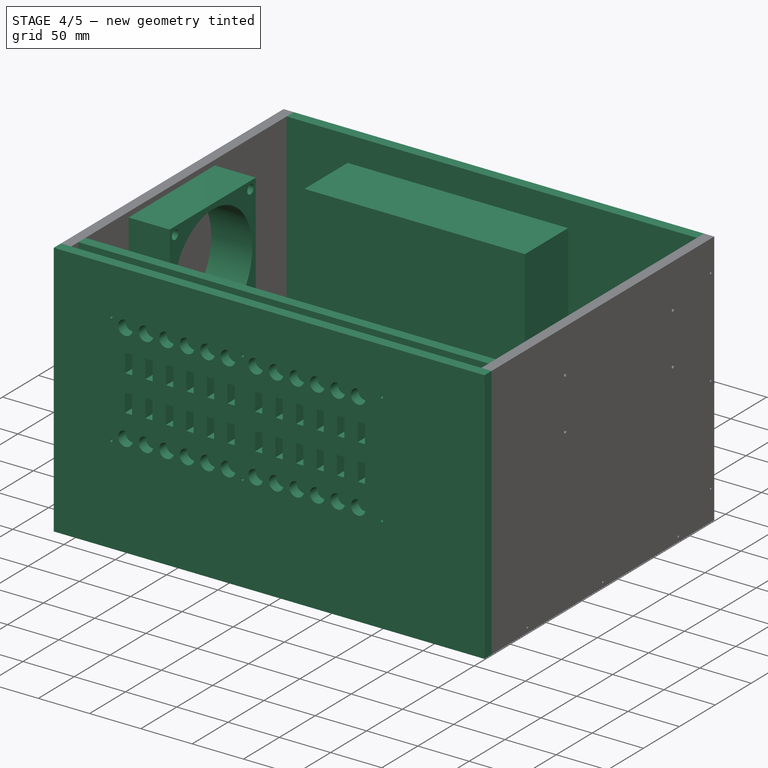
[diagram: stage 4 of 5 — iso view after this stage's code; geometry added in this stage tinted green]
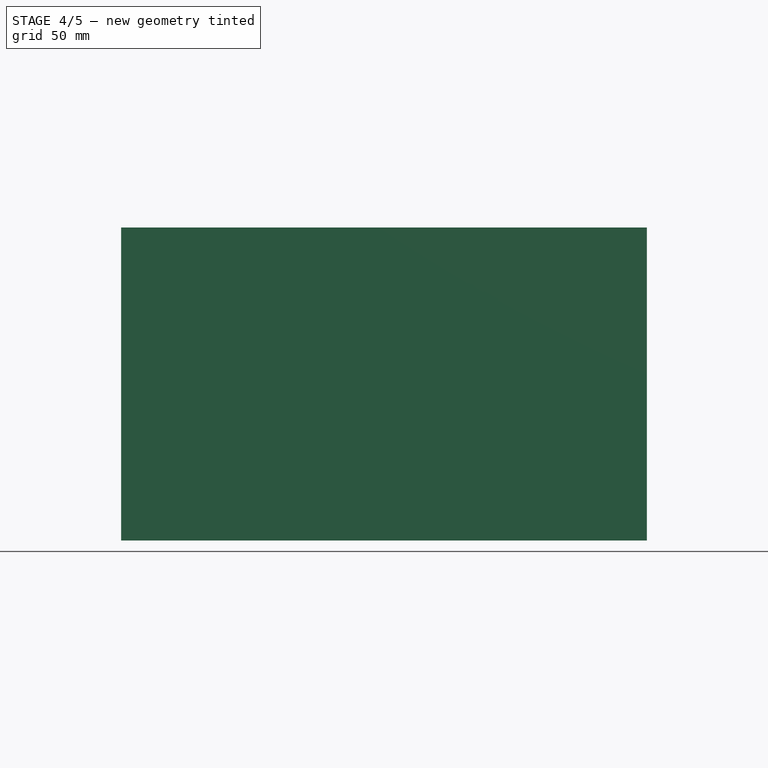
[diagram: stage 4 of 5 — front view after this stage's code; geometry added in this stage tinted green]
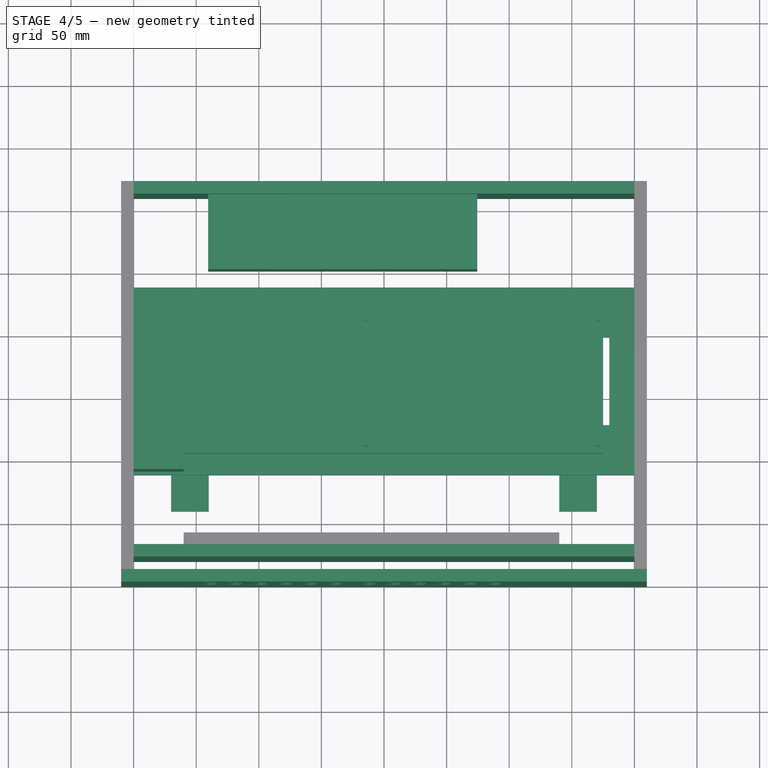
[diagram: stage 4 of 5 — top view after this stage's code; geometry added in this stage tinted green]
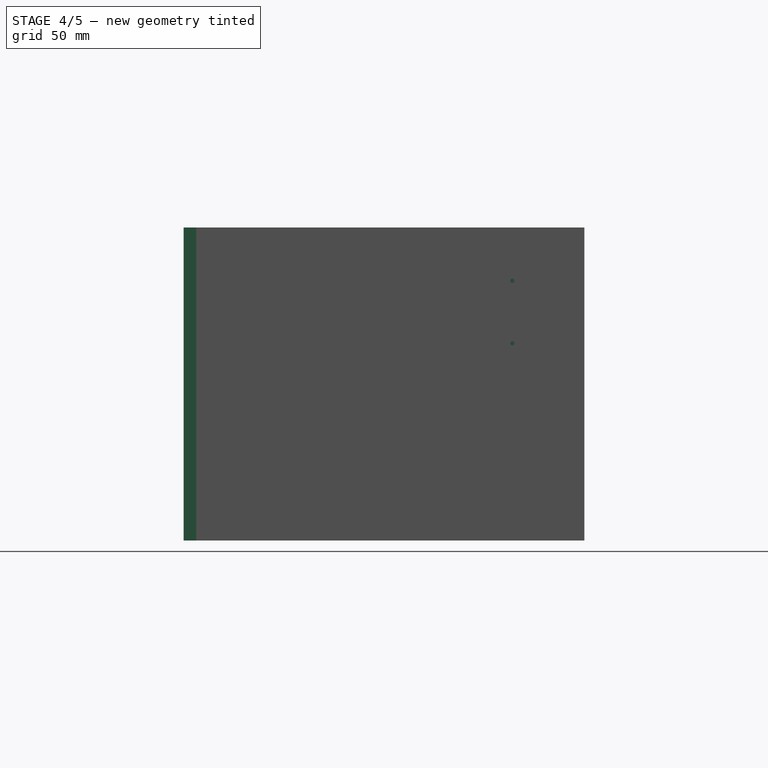
[diagram: stage 4 of 5 — right view after this stage's code; geometry added in this stage tinted green]
FEATURE [Sketcher::SketchObject] Sketch001
  sketch-geometry (8):
    g0: LineSegment StartX=140 StartY=-36 StartZ=0 EndX=170 EndY=-36 EndZ=0
    g1: LineSegment StartX=170 StartY=-36 StartZ=0 EndX=170 EndY=-90 EndZ=0
    g2: LineSegment StartX=170 StartY=-90 StartZ=0 EndX=140 EndY=-90 EndZ=0
    g3: LineSegment StartX=140 StartY=-90 StartZ=0 EndX=140 EndY=-36 EndZ=0
    g4: LineSegment StartX=-170 StartY=-36 StartZ=0 EndX=-140 EndY=-36 EndZ=0
    g5: LineSegment StartX=-140 StartY=-36 StartZ=0 EndX=-140 EndY=-90 EndZ=0
    g6: LineSegment StartX=-140 StartY=-90 StartZ=0 EndX=-170 EndY=-90 EndZ=0
    g7: LineSegment StartX=-170 StartY=-90 StartZ=0 EndX=-170 EndY=-36 EndZ=0
  constraints (21):
    c: Coincident(g0,g1)
    c: Coincident(g1,g2)
    c: Coincident(g3,g0)
    c: Horizontal(g0)
    c: Horizontal(g2)
    c: Vertical(g1)
    c: Vertical(g3)
    c: DistanceY(g1,g1) = 54
    c: DistanceX(g0,g0) = 30
    c: Coincident(g4,g5)
    c: Coincident(g5,g6)
    c: Coincident(g6,g7)
    c: Coincident(g7,g4)
    c: Horizontal(g4)
    c: Horizontal(g6)
    c: Vertical(g5)
    c: Vertical(g7)
    c: DistanceX(g5) = -140
    c: DistanceY(g5) = -90
    c: DistanceX(g6,g6) = 30
    c: DistanceY(g7,g7) = 54
FEATURE [PartDesign::Pad] Pad001
  Length = 10
  Length2 = 100
  Sketch = -> Sketch001
  Type = 0
FEATURE [Sketcher::SketchObject] Sketch003  label="后面板1"
  Placement = pos=(0,170,0) rot=(1,0,0;1.5708rad)
  sketch-geometry (4):
    g0: LineSegment StartX=-200 StartY=240 StartZ=0 EndX=200 EndY=240 EndZ=0
    g1: LineSegment StartX=200 StartY=240 StartZ=0 EndX=200 EndY=-10 EndZ=0
    g2: LineSegment StartX=200 StartY=-10 StartZ=0 EndX=-200 EndY=-10 EndZ=0
    g3: LineSegment StartX=-200 StartY=-10 StartZ=0 EndX=-200 EndY=240 EndZ=0
  constraints (12):
    c: Coincident(g0,g1)
    c: Coincident(g1,g2)
    c: Coincident(g2,g3)
    c: Coincident(g3,g0)
    c: Horizontal(g0)
    c: Horizontal(g2)
    c: Vertical(g1)
    c: Vertical(g3)
    c: DistanceX(g0,g0) = 400
    c: Symmetric(g0,g0,g-2)
    c: DistanceY(g1,g1) = 250
    c: DistanceY(g1,g-1) = 10
FEATURE [PartDesign::Pad] Pad003  label="后面板"
  Length = 10
  Length2 = 100
  Placement = pos=(0,170,0) rot=(1,0,0;1.5708rad)
  Sketch = -> Sketch003
  Type = 0
FEATURE [Sketcher::SketchObject] Sketch004  label="12V电源001"
  Placement = pos=(-33,160,50) rot=(1,0,0;1.5708rad)
  sketch-geometry (4):
    g0: LineSegment StartX=-107.5 StartY=165 StartZ=0 EndX=107.5 EndY=165 EndZ=0
    g1: LineSegment StartX=107.5 StartY=165 StartZ=0 EndX=107.5 EndY=50 EndZ=0
    g2: LineSegment StartX=107.5 StartY=50 StartZ=0 EndX=-107.5 EndY=50 EndZ=0
    g3: LineSegment StartX=-107.5 StartY=50 StartZ=0 EndX=-107.5 EndY=165 EndZ=0
  constraints (12):
    c: Coincident(g0,g1)
    c: Coincident(g1,g2)
    c: Coincident(g2,g3)
    c: Coincident(g3,g0)
    c: Horizontal(g0)
    c: Horizontal(g2)
    c: Vertical(g1)
    c: Vertical(g3)
    c: DistanceX(g0,g0) = 215
    c: DistanceY(g1,g1) = 115
    c: Symmetric(g0,g0,g-2)
    c: DistanceY(g1) = 50
FEATURE [PartDesign::Pad] Pad004  label="12V电源"
  Length = 60
  Length2 = 100
  Placement = pos=(-33,160,50) rot=(1,0,0;1.5708rad)
  Sketch = -> Sketch004
  Type = 0
FEATURE [Sketcher::SketchObject] Sketch007
  Placement = pos=(0,-120,0) rot=(1,0,0;1.5708rad)
  sketch-geometry (4):
    g0: LineSegment StartX=-200 StartY=240 StartZ=0 EndX=200 EndY=240 EndZ=0
    g1: LineSegment StartX=200 StartY=240 StartZ=0 EndX=200 EndY=-10 EndZ=0
    g2: LineSegment StartX=200 StartY=-10 StartZ=0 EndX=-200 EndY=-10 EndZ=0
    g3: LineSegment StartX=-200 StartY=-10 StartZ=0 EndX=-200 EndY=240 EndZ=0
  constraints (12):
    c: Coincident(g0,g1)
    c: Coincident(g1,g2)
    c: Coincident(g2,g3)
    c: Coincident(g3,g0)
    c: Horizontal(g0)
    c: Horizontal(g2)
    c: Vertical(g1)
    c: Vertical(g3)
    c: DistanceX(g0,g0) = 400
    c: Symmetric(g0,g0,g-2)
    c: DistanceY(g1,g1) = 250
    c: DistanceY(g-1,g1) = -10
FEATURE [PartDesign::Pad] Pad007  label="前面板"
  Length = 10
  Length2 = 100
  Placement = pos=(0,-120,0) rot=(1,0,0;1.5708rad)
  Sketch = -> Sketch007
  Type = 0
FEATURE [Sketcher::SketchObject] Sketch009
  Placement = pos=(-160,-140,200) rot=(0.57735,0.57735,-0.57735;2.0944rad)
  sketch-geometry (130):
    g0: Circle CenterX=11.81 CenterY=19.93 CenterZ=0 NormalX=0 NormalY=0 NormalZ=1 Radius=7.1
    g1: Circle CenterX=11.81 CenterY=39.93 CenterZ=0 NormalX=0 NormalY=0 NormalZ=1 Radius=7.1
    g2: Circle CenterX=11.81 CenterY=59.93 CenterZ=0 NormalX=0 NormalY=0 NormalZ=1 Radius=7.1
    g3: Circle CenterX=11.81 CenterY=79.93 CenterZ=0 NormalX=0 NormalY=0 NormalZ=1 Radius=7.1
    g4: Circle CenterX=11.81 CenterY=99.93 CenterZ=0 NormalX=0 NormalY=0 NormalZ=1 Radius=7.1
    g5: Circle CenterX=11.81 CenterY=119.93 CenterZ=0 NormalX=0 NormalY=0 NormalZ=1 Radius=7.1
    g6: Circle CenterX=11.81 CenterY=146.89 CenterZ=0 NormalX=0 NormalY=0 NormalZ=1 Radius=7.1
    g7: Circle CenterX=11.81 CenterY=166.89 CenterZ=0 NormalX=0 NormalY=0 NormalZ=1 Radius=7.1
    g8: Circle CenterX=11.81 CenterY=186.89 CenterZ=0 NormalX=0 NormalY=0 NormalZ=1 Radius=7.1
    g9: Circle CenterX=11.81 CenterY=246.89 CenterZ=0 NormalX=0 NormalY=0 NormalZ=1 Radius=7.1
    g10: Circle CenterX=109.58 CenterY=246.89 CenterZ=0 NormalX=0 NormalY=0 NormalZ=1 Radius=7.1
    g11: Circle CenterX=11.81 CenterY=226.89 CenterZ=0 NormalX=0 NormalY=0 NormalZ=1 Radius=7.1
    g12: Circle CenterX=11.81 CenterY=206.89 CenterZ=0 NormalX=0 NormalY=0 NormalZ=1 Radius=7.1
    g13: Circle CenterX=109.58 CenterY=186.89 CenterZ=0 NormalX=0 NormalY=0 NormalZ=1 Radius=7.1
    g14: Circle CenterX=109.58 CenterY=226.89 CenterZ=0 NormalX=0 NormalY=0 NormalZ=1 Radius=7.1
    g15: Circle CenterX=109.58 CenterY=206.89 CenterZ=0 NormalX=0 NormalY=0 NormalZ=1 Radius=7.1
    g16: Circle CenterX=109.58 CenterY=166.89 CenterZ=0 NormalX=0 NormalY=0 NormalZ=1 Radius=7.1
    g17: Circle CenterX=109.63 CenterY=146.89 CenterZ=0 NormalX=0 NormalY=0 NormalZ=1 Radius=7.1
    g18: Circle CenterX=109.63 CenterY=119.95 CenterZ=0 NormalX=0 NormalY=0 NormalZ=1 Radius=7.1
    g19: Circle CenterX=109.63 CenterY=99.95 CenterZ=0 NormalX=0 NormalY=0 NormalZ=1 Radius=7.1
    g20: Circle CenterX=109.63 CenterY=79.95 CenterZ=0 NormalX=0 NormalY=0 NormalZ=1 Radius=7.1
    g21: Circle CenterX=109.63 CenterY=59.95 CenterZ=0 NormalX=0 NormalY=0 NormalZ=1 Radius=7.1
    g22: Circle CenterX=109.63 CenterY=39.95 CenterZ=0 NormalX=0 NormalY=0 NormalZ=1 Radius=7.1
    g23: Circle CenterX=109.63 CenterY=19.95 CenterZ=0 NormalX=0 NormalY=0 NormalZ=1 Radius=7.1
    g24: Circle CenterX=5.9944 CenterY=5.9944 CenterZ=0 NormalX=0 NormalY=0 NormalZ=1 Radius=1.3
    g25: Circle CenterX=5.9944 CenterY=134 CenterZ=0 NormalX=0 NormalY=0 NormalZ=1 Radius=1.3
    g26: Circle CenterX=5.9944 CenterY=269.79 CenterZ=0 NormalX=0 NormalY=0 NormalZ=1 Radius=1.3
    g27: Circle CenterX=115 CenterY=269.79 CenterZ=0 NormalX=0 NormalY=0 NormalZ=1 Radius=1.3
    g28: Circle CenterX=115 CenterY=5.9944 CenterZ=0 NormalX=0 NormalY=0 NormalZ=1 Radius=1.3
    g29: Circle CenterX=115 CenterY=134 CenterZ=0 NormalX=0 NormalY=0 NormalZ=1 Radius=1.3
    g30: LineSegment StartX=33.87 StartY=26.57 StartZ=0 EndX=51.87 EndY=26.57 EndZ=0
    g31: LineSegment StartX=51.87 StartY=26.57 StartZ=0 EndX=51.87 EndY=19.57 EndZ=0
    g32: LineSegment StartX=51.87 StartY=19.57 StartZ=0 EndX=33.87 EndY=19.57 EndZ=0
    g33: LineSegment StartX=33.87 StartY=19.57 StartZ=0 EndX=33.87 EndY=26.57 EndZ=0
    g34: LineSegment StartX=33.87 StartY=66.47 StartZ=0 EndX=51.87 EndY=66.47 EndZ=0
    g35: LineSegment StartX=51.87 StartY=66.47 StartZ=0 EndX=51.87 EndY=59.47 EndZ=0
    g36: LineSegment StartX=51.87 StartY=59.47 StartZ=0 EndX=33.87 EndY=59.47 EndZ=0
    g37: LineSegment StartX=33.87 StartY=59.47 StartZ=0 EndX=33.87 EndY=66.47 EndZ=0
    g38: LineSegment StartX=33.87 StartY=86.38 StartZ=0 EndX=51.87 EndY=86.38 EndZ=0
    g39: LineSegment StartX=51.87 StartY=86.38 StartZ=0 EndX=51.87 EndY=79.38 EndZ=0
    g40: LineSegment StartX=51.87 StartY=79.38 StartZ=0 EndX=33.87 EndY=79.38 EndZ=0
    g41: LineSegment StartX=33.87 StartY=79.38 StartZ=0 EndX=33.87 EndY=86.38 EndZ=0
    g42: LineSegment StartX=33.87 StartY=46.4 StartZ=0 EndX=51.87 EndY=46.4 EndZ=0
    g43: LineSegment StartX=51.87 StartY=46.4 StartZ=0 EndX=51.87 EndY=39.4 EndZ=0
    g44: LineSegment StartX=51.87 StartY=39.4 StartZ=0 EndX=33.87 EndY=39.4 EndZ=0
    g45: LineSegment StartX=33.87 StartY=39.4 StartZ=0 EndX=33.87 EndY=46.4 EndZ=0
    g46: LineSegment StartX=33.87 StartY=153.36 StartZ=0 EndX=51.87 EndY=153.36 EndZ=0
    g47: LineSegment StartX=51.87 StartY=153.36 StartZ=0 EndX=51.87 EndY=146.36 EndZ=0
    g48: LineSegment StartX=51.87 StartY=146.36 StartZ=0 EndX=33.87 EndY=146.36 EndZ=0
    g49: LineSegment StartX=33.87 StartY=146.36 StartZ=0 EndX=33.87 EndY=153.36 EndZ=0
    g50: LineSegment StartX=33.87 StartY=126.46 StartZ=0 EndX=51.87 EndY=126.46 EndZ=0
    g51: LineSegment StartX=51.87 StartY=126.46 StartZ=0 EndX=51.87 EndY=119.46 EndZ=0
    g52: LineSegment StartX=51.87 StartY=119.46 StartZ=0 EndX=33.87 EndY=119.46 EndZ=0
    g53: LineSegment StartX=33.87 StartY=119.46 StartZ=0 EndX=33.87 EndY=126.46 EndZ=0
    g54: LineSegment StartX=33.87 StartY=106.43 StartZ=0 EndX=51.87 EndY=106.43 EndZ=0
    g55: LineSegment StartX=51.87 StartY=106.43 StartZ=0 EndX=51.87 EndY=99.43 EndZ=0
    g56: LineSegment StartX=51.87 StartY=99.43 StartZ=0 EndX=33.87 EndY=99.43 EndZ=0
    g57: LineSegment StartX=33.87 StartY=99.43 StartZ=0 EndX=33.87 EndY=106.43 EndZ=0
    g58: LineSegment StartX=33.87 StartY=173.36 StartZ=0 EndX=51.87 EndY=173.36 EndZ=0
    g59: LineSegment StartX=51.87 StartY=173.36 StartZ=0 EndX=51.87 EndY=166.36 EndZ=0
    g60: LineSegment StartX=51.87 StartY=166.36 StartZ=0 EndX=33.87 EndY=166.36 EndZ=0
    g61: LineSegment StartX=33.87 StartY=166.36 StartZ=0 EndX=33.87 EndY=173.36 EndZ=0
    g62: LineSegment StartX=51.87 StartY=213.34 StartZ=0 EndX=33.87 EndY=213.34 EndZ=0
    g63: LineSegment StartX=33.87 StartY=213.34 StartZ=0 EndX=33.87 EndY=206.34 EndZ=0
    g64: LineSegment StartX=33.87 StartY=206.34 StartZ=0 EndX=51.87 EndY=206.34 EndZ=0
    g65: LineSegment StartX=51.87 StartY=206.34 StartZ=0 EndX=51.87 EndY=213.34 EndZ=0
    g66: LineSegment StartX=33.87 StartY=193.39 StartZ=0 EndX=51.87 EndY=193.39 EndZ=0
    g67: LineSegment StartX=51.87 StartY=193.39 StartZ=0 EndX=51.87 EndY=186.39 EndZ=0
    g68: LineSegment StartX=51.87 StartY=186.39 StartZ=0 EndX=33.87 EndY=186.39 EndZ=0
    g69: LineSegment StartX=33.87 StartY=186.39 StartZ=0 EndX=33.87 EndY=193.39 EndZ=0
    g70: LineSegment StartX=33.87 StartY=253.52 StartZ=0 EndX=51.87 EndY=253.52 EndZ=0
    g71: LineSegment StartX=51.87 StartY=253.52 StartZ=0 EndX=51.87 EndY=246.52 EndZ=0
    g72: LineSegment StartX=51.87 StartY=246.52 StartZ=0 EndX=33.87 EndY=246.52 EndZ=0
    g73: LineSegment StartX=33.87 StartY=246.52 StartZ=0 EndX=33.87 EndY=253.52 EndZ=0
    g74: LineSegment StartX=33.8701 StartY=233.4 StartZ=0 EndX=51.8701 EndY=233.4 EndZ=0
    g75: LineSegment StartX=51.8701 StartY=233.4 StartZ=0 EndX=51.8701 EndY=226.4 EndZ=0
    g76: LineSegment StartX=51.8701 StartY=226.4 StartZ=0 EndX=33.8701 EndY=226.4 EndZ=0
    g77: LineSegment StartX=33.8701 StartY=226.4 StartZ=0 EndX=33.8701 EndY=233.4 EndZ=0
    g78: LineSegment StartX=68.82 StartY=26.37 StartZ=0 EndX=86.82 EndY=26.37 EndZ=0
    g79: LineSegment StartX=86.82 StartY=26.37 StartZ=0 EndX=86.82 EndY=19.37 EndZ=0
    g80: LineSegment StartX=86.82 StartY=19.37 StartZ=0 EndX=68.82 EndY=19.37 EndZ=0
    g81: LineSegment StartX=68.82 StartY=19.37 StartZ=0 EndX=68.82 EndY=26.37 EndZ=0
    g82: LineSegment StartX=68.3352 StartY=46.33 StartZ=0 EndX=86.3352 EndY=46.33 EndZ=0
    g83: LineSegment StartX=86.3352 StartY=46.33 StartZ=0 EndX=86.3352 EndY=39.33 EndZ=0
    g84: LineSegment StartX=86.3352 StartY=39.33 StartZ=0 EndX=68.3352 EndY=39.33 EndZ=0
    g85: LineSegment StartX=68.3352 StartY=39.33 StartZ=0 EndX=68.3352 EndY=46.33 EndZ=0
    g86: LineSegment StartX=68.6925 StartY=66.4 StartZ=0 EndX=86.6925 EndY=66.4 EndZ=0
    g87: LineSegment StartX=86.6925 StartY=66.4 StartZ=0 EndX=86.6925 EndY=59.4 EndZ=0
    g88: LineSegment StartX=86.6925 StartY=59.4 StartZ=0 EndX=68.6925 EndY=59.4 EndZ=0
    g89: LineSegment StartX=68.6925 StartY=59.4 StartZ=0 EndX=68.6925 EndY=66.4 EndZ=0
    g90: LineSegment StartX=68.7894 StartY=86.34 StartZ=0 EndX=86.7894 EndY=86.34 EndZ=0
    g91: LineSegment StartX=86.7894 StartY=86.34 StartZ=0 EndX=86.7894 EndY=79.34 EndZ=0
    g92: LineSegment StartX=86.7894 StartY=79.34 StartZ=0 EndX=68.7894 EndY=79.34 EndZ=0
    g93: LineSegment StartX=68.7894 StartY=79.34 StartZ=0 EndX=68.7894 EndY=86.34 EndZ=0
    g94: LineSegment StartX=68.733 StartY=106.27 StartZ=0 EndX=86.733 EndY=106.27 EndZ=0
    g95: LineSegment StartX=86.733 StartY=106.27 StartZ=0 EndX=86.733 EndY=99.27 EndZ=0
    g96: LineSegment StartX=86.733 StartY=99.27 StartZ=0 EndX=68.733 EndY=99.27 EndZ=0
    g97: LineSegment StartX=68.733 StartY=99.27 StartZ=0 EndX=68.733 EndY=106.27 EndZ=0
    g98: LineSegment StartX=68.82 StartY=126.36 StartZ=0 EndX=86.82 EndY=126.36 EndZ=0
    g99: LineSegment StartX=86.82 StartY=126.36 StartZ=0 EndX=86.82 EndY=119.36 EndZ=0
    g100: LineSegment StartX=86.82 StartY=119.36 StartZ=0 EndX=68.82 EndY=119.36 EndZ=0
    g101: LineSegment StartX=68.82 StartY=119.36 StartZ=0 EndX=68.82 EndY=126.36 EndZ=0
    g102: LineSegment StartX=68.8995 StartY=153.372 StartZ=0 EndX=86.8995 EndY=153.372 EndZ=0
    g103: LineSegment StartX=86.8995 StartY=153.372 StartZ=0 EndX=86.8995 EndY=146.372 EndZ=0
    g104: LineSegment StartX=86.8995 StartY=146.372 StartZ=0 EndX=68.8995 EndY=146.372 EndZ=0
    g105: LineSegment StartX=68.8995 StartY=146.372 StartZ=0 EndX=68.8995 EndY=153.372 EndZ=0
    g106: LineSegment StartX=68.7731 StartY=173.267 StartZ=0 EndX=86.7731 EndY=173.267 EndZ=0
    g107: LineSegment StartX=86.7731 StartY=173.267 StartZ=0 EndX=86.7731 EndY=166.267 EndZ=0
    g108: LineSegment StartX=86.7731 StartY=166.267 StartZ=0 EndX=68.7731 EndY=166.267 EndZ=0
    g109: LineSegment StartX=68.7731 StartY=166.267 StartZ=0 EndX=68.7731 EndY=173.267 EndZ=0
    g110: LineSegment StartX=68.781 StartY=193.39 StartZ=0 EndX=86.781 EndY=193.39 EndZ=0
    g111: LineSegment StartX=86.781 StartY=193.39 StartZ=0 EndX=86.781 EndY=186.39 EndZ=0
    g112: LineSegment StartX=86.781 StartY=186.39 StartZ=0 EndX=68.781 EndY=186.39 EndZ=0
    g113: LineSegment StartX=68.781 StartY=186.39 StartZ=0 EndX=68.781 EndY=193.39 EndZ=0
    g114: LineSegment StartX=68.6717 StartY=213.338 StartZ=0 EndX=86.6717 EndY=213.338 EndZ=0
    g115: LineSegment StartX=86.6717 StartY=213.338 StartZ=0 EndX=86.6717 EndY=206.338 EndZ=0
    g116: LineSegment StartX=86.6717 StartY=206.338 StartZ=0 EndX=68.6717 EndY=206.338 EndZ=0
    g117: LineSegment StartX=68.6717 StartY=206.338 StartZ=0 EndX=68.6717 EndY=213.338 EndZ=0
    g118: LineSegment StartX=68.6927 StartY=233.2 StartZ=0 EndX=86.6927 EndY=233.2 EndZ=0
    g119: LineSegment StartX=86.6927 StartY=233.2 StartZ=0 EndX=86.6927 EndY=226.2 EndZ=0
    g120: LineSegment StartX=86.6927 StartY=226.2 StartZ=0 EndX=68.6927 EndY=226.2 EndZ=0
    g121: LineSegment StartX=68.6927 StartY=226.2 StartZ=0 EndX=68.6927 EndY=233.2 EndZ=0
    g122: LineSegment StartX=68.82 StartY=253.52 StartZ=0 EndX=86.82 EndY=253.52 EndZ=0
    g123: LineSegment StartX=86.82 StartY=253.52 StartZ=0 EndX=86.82 EndY=246.52 EndZ=0
    g124: LineSegment StartX=86.82 StartY=246.52 StartZ=0 EndX=68.82 EndY=246.52 EndZ=0
    g125: LineSegment StartX=68.82 StartY=246.52 StartZ=0 EndX=68.82 EndY=253.52 EndZ=0
    g126: LineSegment StartX=-40 StartY=370 StartZ=0 EndX=210 EndY=370 EndZ=0
    g127: LineSegment StartX=210 StartY=370 StartZ=0 EndX=210 EndY=-49.9998 EndZ=0
    g128: LineSegment StartX=210 StartY=-49.9998 StartZ=0 EndX=-40 EndY=-49.9998 EndZ=0
    g129: LineSegment StartX=-40 StartY=-49.9998 StartZ=0 EndX=-40 EndY=370 EndZ=0
  constraints (337):
    c: Radius(g0) = 7.1
    c: DistanceX(g0) = 11.81
    c: DistanceY(g0) = 19.93
    c: Equal(g1,g2)
    c: DistanceY(g1) = 39.93
    c: DistanceY(g2) = 59.93
    c: Equal(g2,g3)
    c: DistanceY(g3) = 79.93
    c: Equal(g3,g4)
    c: Equal(g4,g5)
    c: Equal(g5,g6)
    c: DistanceY(g4) = 99.93
    c: DistanceY(g5) = 119.93
    c: DistanceY(g6) = 146.89
    c: Equal(g6,g7)
    c: Equal(g7,g8)
    c: DistanceY(g7) = 166.89
    c: DistanceY(g8) = 186.89
    c: Equal(g8,g12)
    c: Equal(g12,g11)
    c: Equal(g11,g10)
    c: Equal(g10,g9)
    c: DistanceY(g12) = 206.89
    c: DistanceY(g11) = 226.89
    c: DistanceY(g9) = 246.89
    c: DistanceX(g10) = 109.58
    c: DistanceY(g10) = 246.89
    c: DistanceX(g14) = 109.58
    c: DistanceY(g14) = 226.89
    c: Equal(g10,g14)
    c: Equal(g14,g15)
    c: Equal(g15,g13)
    c: Equal(g13,g16)
    c: Equal(g16,g17)
    c: Equal(g17,g18)
    c: Equal(g18,g19)
    c: Equal(g19,g20)
    c: Equal(g20,g21)
    c: Equal(g21,g22)
    c: Equal(g22,g23)
    c: DistanceX(g15) = 109.58
    c: DistanceY(g15) = 206.89
    c: DistanceX(g23) = 109.63
    c: DistanceY(g23) = 19.95
    c: DistanceY(g22) = 39.95
    c: DistanceY(g21) = 59.95
    c: DistanceY(g20) = 79.95
    c: DistanceY(g19) = 99.95
    c: DistanceY(g18) = 119.95
    c: DistanceX(g17) = 109.63
    c: DistanceY(g17) = 146.89
    c: DistanceX(g16) = 109.58
    c: DistanceY(g16) = 166.89
    c: DistanceX(g13) = 109.58
    c: DistanceY(g13) = 186.89
    c: Radius(g24) = 1.3
    c: DistanceX(g24) = 5.9944
    c: DistanceY(g24) = 5.9944
    c: Equal(g24,g25)
    c: Equal(g25,g26)
    c: Equal(g26,g28)
    c: Equal(g28,g29)
    c: Equal(g29,g27)
    c: Radius(g1) = 7.1
    c: DistanceX(g25) = 5.9944
    c: DistanceY(g25) = 134
    c: DistanceX(g26) = 5.9944
    c: DistanceY(g26) = 269.79
    c: DistanceX(g28) = 115
    c: DistanceY(g28) = 5.9944
    c: DistanceX(g29) = 115
    c: DistanceY(g29) = 134
    c: DistanceX(g27) = 115
    c: DistanceY(g27) = 269.79
    c: Coincident(g30,g31)
    c: Coincident(g31,g32)
    c: Coincident(g32,g33)
    c: Coincident(g33,g30)
    c: Horizontal(g30)
    c: Horizontal(g32)
    c: Vertical(g31)
    c: Vertical(g33)
    c: DistanceX(g30) = 51.87
    c: Coincident(g34,g35)
    c: Coincident(g35,g36)
    c: Coincident(g36,g37)
    c: Coincident(g37,g34)
    c: Horizontal(g34)
    c: Horizontal(g36)
    c: Vertical(g35)
    c: Vertical(g37)
    c: DistanceX(g32,g32) = 18
    c: DistanceY(g31,g31) = 7
    c: Equal(g32,g34)
    c: Equal(g31,g35)
    c: Coincident(g38,g39)
    c: Coincident(g39,g40)
    c: Coincident(g40,g41)
    c: Coincident(g41,g38)
    c: Horizontal(g38)
    c: Horizontal(g40)
    c: Vertical(g39)
    c: Vertical(g41)
    c: Coincident(g42,g43)
    c: Coincident(g43,g44)
    c: Coincident(g44,g45)
    c: Coincident(g45,g42)
    c: Horizontal(g42)
    c: Horizontal(g44)
    c: Vertical(g43)
    c: Vertical(g45)
    c: Coincident(g46,g47)
    c: Coincident(g47,g48)
    c: Coincident(g48,g49)
    c: Coincident(g49,g46)
    c: Horizontal(g46)
    c: Horizontal(g48)
    c: Vertical(g47)
    c: Vertical(g49)
    c: Coincident(g50,g51)
    c: Coincident(g51,g52)
    c: Coincident(g52,g53)
    c: Coincident(g53,g50)
    c: Horizontal(g50)
    c: Horizontal(g52)
    c: Vertical(g51)
    c: Vertical(g53)
    c: Coincident(g54,g55)
    c: Coincident(g55,g56)
    c: Coincident(g56,g57)
    c: Coincident(g57,g54)
    c: Horizontal(g54)
    c: Horizontal(g56)
    c: Vertical(g55)
    c: Vertical(g57)
    c: Coincident(g58,g59)
    c: Coincident(g59,g60)
    c: Coincident(g60,g61)
    c: Coincident(g61,g58)
    c: Horizontal(g58)
    c: Horizontal(g60)
    c: Vertical(g59)
    c: Vertical(g61)
    c: Coincident(g62,g63)
    c: Coincident(g63,g64)
    c: Coincident(g64,g65)
    c: Coincident(g65,g62)
    c: Horizontal(g62)
    c: Horizontal(g64)
    c: Vertical(g63)
    c: Vertical(g65)
    c: Coincident(g66,g67)
    c: Coincident(g67,g68)
    c: Coincident(g68,g69)
    c: Coincident(g69,g66)
    c: Horizontal(g66)
    c: Horizontal(g68)
    c: Vertical(g67)
    c: Vertical(g69)
    c: Coincident(g70,g71)
    c: Coincident(g71,g72)
    c: Coincident(g72,g73)
    c: Coincident(g73,g70)
    c: Horizontal(g70)
    c: Horizontal(g72)
    c: Vertical(g71)
    c: Vertical(g73)
    c: Coincident(g74,g75)
    c: Coincident(g75,g76)
    c: Coincident(g76,g77)
    c: Coincident(g77,g74)
    c: Horizontal(g74)
    c: Horizontal(g76)
    c: Vertical(g75)
    c: Vertical(g77)
    c: Equal(g34,g38)
    c: Equal(g38,g54)
    c: Equal(g54,g42)
    c: Equal(g35,g55)
    c: Equal(g55,g39)
    c: Equal(g39,g43)
    c: Equal(g32,g60)
    c: Equal(g60,g50)
    c: Equal(g50,g46)
    c: Equal(g46,g66)
    c: Equal(g66,g62)
    c: Equal(g62,g74)
    c: Equal(g74,g70)
    c: Equal(g31,g59)
    c: Equal(g59,g51)
    c: Equal(g51,g47)
    c: Equal(g47,g67)
    c: Equal(g67,g63)
    c: Equal(g63,g75)
    c: Equal(g75,g73)
    c: DistanceY(g50) = 126.46
    c: Coincident(g78,g79)
    c: Coincident(g79,g80)
    c: Coincident(g80,g81)
    c: Coincident(g81,g78)
    c: Horizontal(g78)
    c: Horizontal(g80)
    c: Vertical(g79)
    c: Vertical(g81)
    c: Coincident(g82,g83)
    c: Coincident(g83,g84)
    c: Coincident(g84,g85)
    c: Coincident(g85,g82)
    c: Horizontal(g82)
    c: Horizontal(g84)
    c: Vertical(g83)
    c: Vertical(g85)
    c: Coincident(g86,g87)
    c: Coincident(g87,g88)
    c: Coincident(g88,g89)
    c: Coincident(g89,g86)
    c: Horizontal(g86)
    c: Horizontal(g88)
    c: Vertical(g87)
    c: Vertical(g89)
    c: Coincident(g90,g91)
    c: Coincident(g91,g92)
    c: Coincident(g92,g93)
    c: Coincident(g93,g90)
    c: Horizontal(g90)
    c: Horizontal(g92)
    c: Vertical(g91)
    c: Vertical(g93)
    c: Coincident(g94,g95)
    c: Coincident(g95,g96)
    c: Coincident(g96,g97)
    c: Coincident(g97,g94)
    c: Horizontal(g94)
    c: Horizontal(g96)
    c: Vertical(g95)
    c: Vertical(g97)
    c: Coincident(g98,g99)
    c: Coincident(g99,g100)
    c: Coincident(g100,g101)
    c: Coincident(g101,g98)
    c: Horizontal(g98)
    c: Horizontal(g100)
    c: Vertical(g99)
    c: Vertical(g101)
    c: Coincident(g102,g103)
    c: Coincident(g103,g104)
    c: Coincident(g104,g105)
    c: Coincident(g105,g102)
    c: Horizontal(g102)
    c: Horizontal(g104)
    c: Vertical(g103)
    c: Vertical(g105)
    c: Coincident(g106,g107)
    c: Coincident(g107,g108)
    c: Coincident(g108,g109)
    c: Coincident(g109,g106)
    c: Horizontal(g106)
    c: Horizontal(g108)
    c: Vertical(g107)
    c: Vertical(g109)
    c: Coincident(g110,g111)
    c: Coincident(g111,g112)
    c: Coincident(g112,g113)
    c: Coincident(g113,g110)
    c: Horizontal(g110)
    c: Vertical(g111)
    c: Vertical(g113)
    c: Coincident(g114,g115)
    c: Coincident(g115,g116)
    c: Coincident(g116,g117)
    c: Coincident(g117,g114)
    c: Horizontal(g114)
    c: Vertical(g115)
    c: Vertical(g117)
    c: Coincident(g118,g119)
    c: Coincident(g119,g120)
    c: Coincident(g120,g121)
    c: Coincident(g121,g118)
    c: Horizontal(g118)
    c: Horizontal(g120)
    c: Vertical(g119)
    c: Vertical(g121)
    c: Coincident(g122,g123)
    c: Coincident(g123,g124)
    c: Coincident(g124,g125)
    c: Coincident(g125,g122)
    c: Horizontal(g122)
    c: Horizontal(g124)
    c: Vertical(g123)
    c: Vertical(g125)
    c: Equal(g70,g122)
    c: Equal(g71,g123)
    c: Equal(g75,g121)
    c: Equal(g74,g118)
    c: Equal(g120,g114)
    c: Equal(g114,g110)
    c: Equal(g110,g106)
    c: Equal(g125,g121)
    c: Equal(g119,g115)
    c: Equal(g115,g111)
    c: Equal(g111,g107)
    c: Equal(g108,g102)
    c: Equal(g102,g100)
    c: Equal(g100,g96)
    c: Equal(g96,g92)
    c: Equal(g92,g88)
    c: Equal(g88,g84)
    c: Equal(g84,g80)
    c: Equal(g121,g117)
    c: Equal(g117,g113)
    c: Equal(g113,g109)
    c: Equal(g109,g105)
    c: Equal(g105,g101)
    c: Equal(g101,g97)
    c: Equal(g97,g93)
    c: Equal(g97,g89)
    c: Equal(g89,g85)
    c: Equal(g85,g81)
    c: DistanceX(g122) = 86.82
    c: DistanceY(g98) = 126.36
    c: DistanceY(g94) = 106.27
    c: DistanceY(g90) = 86.34
    c: DistanceY(g86) = 66.4
    c: DistanceY(g82) = 46.33
    c: DistanceY(g78) = 26.37
    c: Coincident(g126,g127)
    c: Coincident(g127,g128)
    c: Coincident(g128,g129)
    c: Coincident(g129,g126)
    c: Horizontal(g126)
    c: Horizontal(g128)
    c: Vertical(g127)
    c: Vertical(g129)
    c: DistanceX(g126,g126) = 250
    c: DistanceY(g129,g129) = 420
    c: DistanceX(g126) = -40
    c: DistanceY(g126) = 370
FEATURE [PartDesign::Pad] Pad009  label="电源板in前面板"
  Length = 10
  Length2 = 100
  Placement = pos=(-160,-140,200) rot=(0.57735,0.57735,-0.57735;2.0944rad)
  Sketch = -> Sketch009
  Type = 0
FEATURE [Sketcher::SketchObject] Sketch011
  Placement = pos=(-200,0,175) rot=(0.57735,0.57735,0.57735;2.0944rad)
  sketch-geometry (9):
    g0: LineSegment StartX=-60 StartY=60 StartZ=0 EndX=60 EndY=60 EndZ=0
    g1: LineSegment StartX=60 StartY=60 StartZ=0 EndX=60 EndY=-60 EndZ=0
    g2: LineSegment StartX=60 StartY=-60 StartZ=0 EndX=-60 EndY=-60 EndZ=0
    g3: LineSegment StartX=-60 StartY=-60 StartZ=0 EndX=-60 EndY=60 EndZ=0
    g4: Circle CenterX=-52.5 CenterY=52.5 CenterZ=0 NormalX=0 NormalY=0 NormalZ=1 Radius=4.4
    g5: Circle CenterX=52.5 CenterY=52.5 CenterZ=0 NormalX=0 NormalY=0 NormalZ=1 Radius=4.4
    g6: Circle CenterX=-52.5 CenterY=-52.5 CenterZ=0 NormalX=0 NormalY=0 NormalZ=1 Radius=4.4
    g7: Circle CenterX=52.5 CenterY=-52.5 CenterZ=0 NormalX=0 NormalY=0 NormalZ=1 Radius=4.4
    g8: Circle CenterX=0 CenterY=0 CenterZ=0 NormalX=0 NormalY=0 NormalZ=1 Radius=55
  constraints (22):
    c: Coincident(g0,g1)
    c: Coincident(g1,g2)
    c: Coincident(g2,g3)
    c: Coincident(g3,g0)
    c: Horizontal(g2)
    c: Vertical(g1)
    c: Vertical(g3)
    c: Symmetric(g0,g0,g-2)
    c: Symmetric(g0,g1,g-1)
    c: DistanceY(g1,g1) = 120
    c: DistanceX(g0,g0) = 120
    c: Symmetric(g6,g7,g-2)
    c: Symmetric(g4,g5,g-2)
    c: Symmetric(g4,g6,g-1)
    c: DistanceX(g6,g7) = 105
    c: DistanceY(g6,g4) = 105
    c: Radius(g6) = 4.4
    c: Radius(g7) = 4.4
    c: Radius(g4) = 4.4
    c: Radius(g5) = 4.4
    c: Coincident(g8,g-1)
    c: Radius(g8) = 55
FEATURE [PartDesign::Pad] Pad011  label="风扇"
  Length = 40
  Length2 = 100
  Placement = pos=(-200,0,175) rot=(0.57735,0.57735,0.57735;2.0944rad)
  Sketch = -> Sketch011
  Type = 0
FEATURE [Sketcher::SketchObject] Sketch013
  Placement = pos=(0,0,60) rot=(0,0,1;0rad)
  sketch-geometry (8):
    g0: LineSegment StartX=-200 StartY=87.8982 StartZ=0 EndX=200 EndY=87.8982 EndZ=0
    g1: LineSegment StartX=200 StartY=87.8982 StartZ=0 EndX=200 EndY=-62.1018 EndZ=0
    g2: LineSegment StartX=200 StartY=-62.1018 StartZ=0 EndX=-200 EndY=-62.1018 EndZ=0
    g3: LineSegment StartX=-200 StartY=-62.1018 StartZ=0 EndX=-200 EndY=87.8982 EndZ=0
    g4: LineSegment StartX=-180 StartY=47.8982 StartZ=0 EndX=180 EndY=47.8982 EndZ=0
    g5: LineSegment StartX=180 StartY=47.8982 StartZ=0 EndX=180 EndY=-22.1018 EndZ=0
    g6: LineSegment StartX=180 StartY=-22.1018 StartZ=0 EndX=-180 EndY=-22.1018 EndZ=0
    g7: LineSegment StartX=-180 StartY=-22.1018 StartZ=0 EndX=-180 EndY=47.8982 EndZ=0
  constraints (23):
    c: Coincident(g0,g1)
    c: Coincident(g1,g2)
    c: Coincident(g2,g3)
    c: Coincident(g3,g0)
    c: Horizontal(g0)
    c: Horizontal(g2)
    c: Vertical(g1)
    c: Vertical(g3)
    c: DistanceX(g0,g0) = 400
    c: Symmetric(g0,g0,g-2)
    c: DistanceY(g1,g1) = 150
    c: Coincident(g4,g5)
    c: Coincident(g5,g6)
    c: Coincident(g6,g7)
    c: Coincident(g7,g4)
    c: Horizontal(g4)
    c: Horizontal(g6)
    c: Vertical(g5)
    c: Vertical(g7)
    c: Distance(g4,g3) = 20
    c: Distance(g4,g1) = 20
    c: Distance(g4,g0) = 40
    c: Distance(g5,g2) = 40
FEATURE [PartDesign::Pad] Pad013  label="串口板支架"
  Length = 10
  Length2 = 100
  Placement = pos=(0,0,60) rot=(0,0,1;0rad)
  Sketch = -> Sketch013
  Type = 0
FEATURE [Sketcher::SketchObject] Sketch014
  Placement = pos=(0,10,70) rot=(0,0,1;0rad)
  sketch-geometry (10):
    g0: LineSegment StartX=-175 StartY=55 StartZ=0 EndX=175 EndY=55 EndZ=0
    g1: LineSegment StartX=175 StartY=55 StartZ=0 EndX=175 EndY=-55 EndZ=0
    g2: LineSegment StartX=175 StartY=-55 StartZ=0 EndX=-175 EndY=-55 EndZ=0
    g3: LineSegment StartX=-175 StartY=-55 StartZ=0 EndX=-175 EndY=55 EndZ=0
    g4: Circle CenterX=170.934 CenterY=50 CenterZ=0 NormalX=0 NormalY=0 NormalZ=1 Radius=1.3
    g5: Circle CenterX=170.934 CenterY=-50 CenterZ=0 NormalX=0 NormalY=0 NormalZ=1 Radius=1.3
    g6: Circle CenterX=-15.0664 CenterY=50 CenterZ=0 NormalX=0 NormalY=0 NormalZ=1 Radius=1.3
    g7: Circle CenterX=-15.0664 CenterY=-50 CenterZ=0 NormalX=0 NormalY=0 NormalZ=1 Radius=1.3
    g8: Circle CenterX=-171.066 CenterY=-50 CenterZ=0 NormalX=0 NormalY=0 NormalZ=1 Radius=1.3
    g9: Circle CenterX=-171.066 CenterY=50 CenterZ=0 NormalX=0 NormalY=0 NormalZ=1 Radius=1.3
  constraints (26):
    c: Coincident(g0,g1)
    c: Coincident(g1,g2)
    c: Coincident(g2,g3)
    c: Coincident(g3,g0)
    c: Horizontal(g0)
    c: Horizontal(g2)
    c: Vertical(g1)
    c: Vertical(g3)
    c: DistanceX(g0,g0) = 350
    c: DistanceY(g1,g1) = 110
    c: Symmetric(g0,g0,g-2)
    c: Radius(g4) = 1.3
    c: Radius(g5) = 1.3
    c: DistanceY(g5,g4) = 100
    c: Symmetric(g0,g1,g-1)
    c: Symmetric(g4,g5,g-1)
    c: Symmetric(g6,g7,g-1)
    c: Symmetric(g9,g8,g-1)
    c: DistanceY(g8,g9) = 100
    c: DistanceY(g7,g6) = 100
    c: Radius(g9) = 1.3
    c: Radius(g8) = 1.3
    c: Radius(g7) = 1.3
    c: Radius(g6) = 1.3
    c: DistanceX(g8,g7) = 156
    c: DistanceX(g7,g5) = 186
FEATURE [PartDesign::Pad] Pad014  label="串口板模型"
  Length = 20
  Length2 = 100
  Placement = pos=(0,10,70) rot=(0,0,1;0rad)
  Sketch = -> Sketch014
  Type = 0
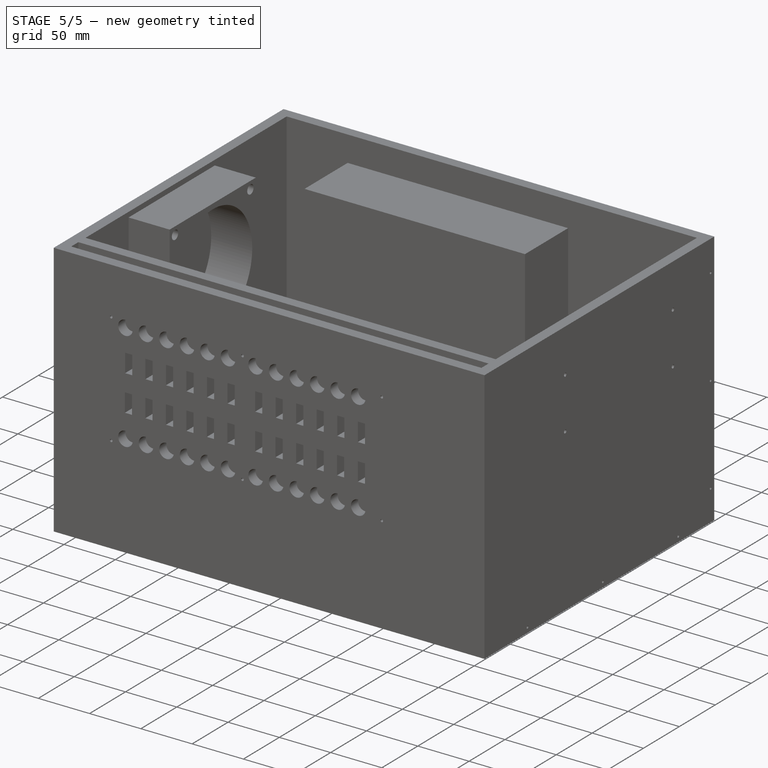
[diagram: stage 5 of 5 — iso view after this stage's code; geometry added in this stage tinted green]
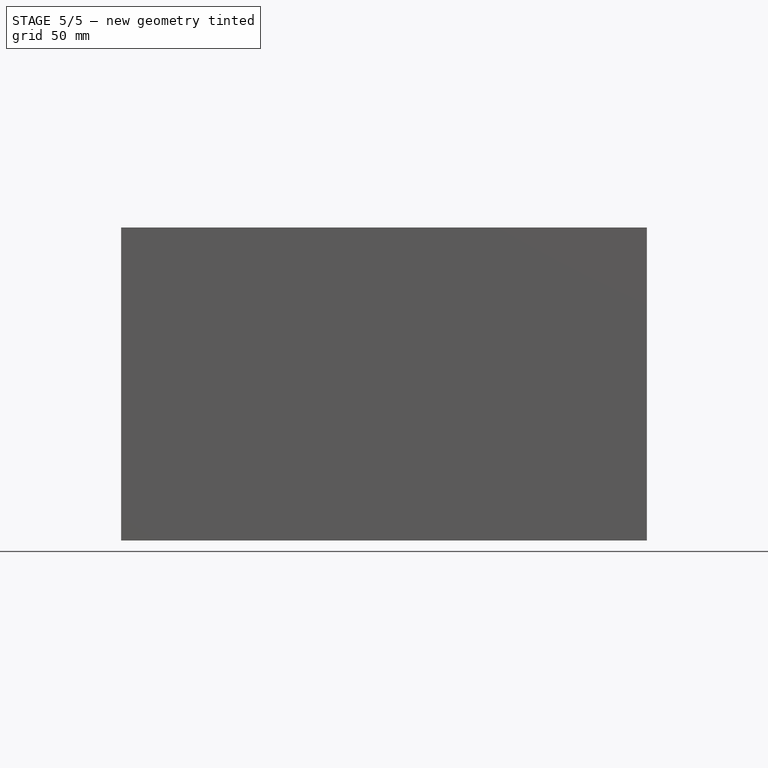
[diagram: stage 5 of 5 — front view after this stage's code; geometry added in this stage tinted green]
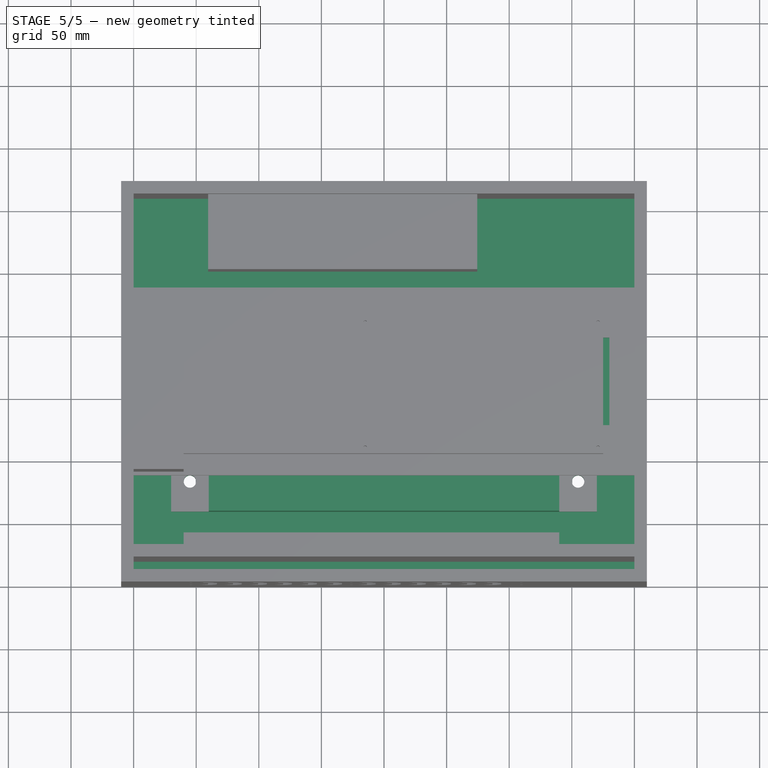
[diagram: stage 5 of 5 — top view after this stage's code; geometry added in this stage tinted green]
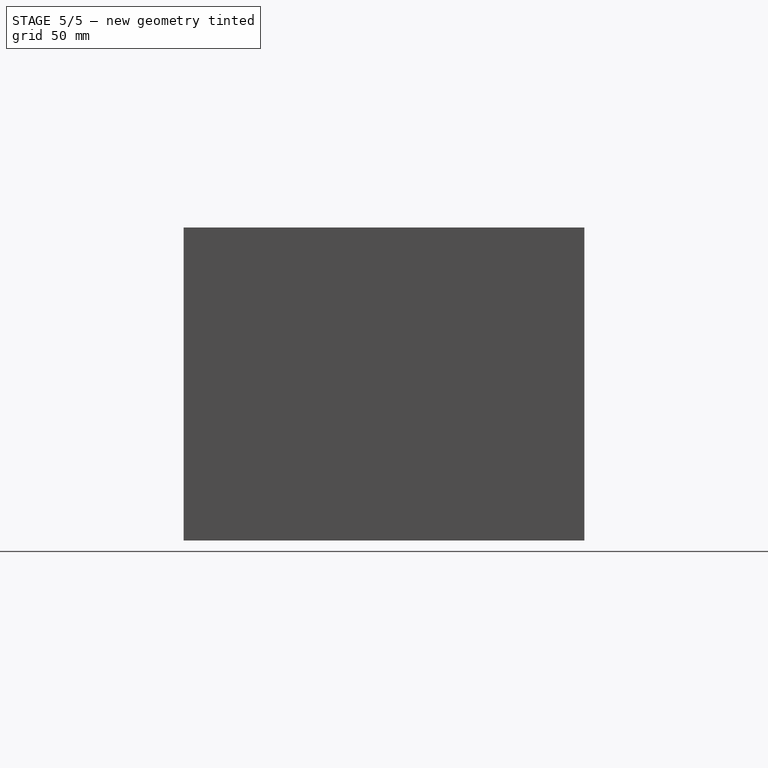
[diagram: stage 5 of 5 — right view after this stage's code; geometry added in this stage tinted green]
FEATURE [Sketcher::SketchObject] Sketch
  sketch-geometry (4):
    g0: LineSegment StartX=-140 StartY=90 StartZ=0 EndX=140 EndY=90 EndZ=0
    g1: LineSegment StartX=140 StartY=90 StartZ=0 EndX=140 EndY=-90 EndZ=0
    g2: LineSegment StartX=140 StartY=-90 StartZ=0 EndX=-140 EndY=-90 EndZ=0
    g3: LineSegment StartX=-140 StartY=-90 StartZ=0 EndX=-140 EndY=90 EndZ=0
  constraints (12):
    c: Coincident(g0,g1)
    c: Coincident(g1,g2)
    c: Coincident(g2,g3)
    c: Coincident(g3,g0)
    c: Horizontal(g0)
    c: Horizontal(g2)
    c: Vertical(g1)
    c: Vertical(g3)
    c: Distance(g1) = 180
    c: Distance(g0) = 280
    c: DistanceX(g0) = 140
    c: DistanceY(g0) = 90
FEATURE [PartDesign::Pad] Pad
  Length = 44
  Length2 = 100
  Sketch = -> Sketch
  Type = 0
FEATURE [Sketcher::SketchObject] Sketch002
  Placement = pos=(0,0,-10) rot=(1,0,0;3.14159rad)
  sketch-geometry (4):
    g0: LineSegment StartX=-200 StartY=140 StartZ=0 EndX=200 EndY=140 EndZ=0
    g1: LineSegment StartX=200 StartY=140 StartZ=0 EndX=200 EndY=-160 EndZ=0
    g2: LineSegment StartX=200 StartY=-160 StartZ=0 EndX=-200 EndY=-160 EndZ=0
    g3: LineSegment StartX=-200 StartY=-160 StartZ=0 EndX=-200 EndY=140 EndZ=0
  constraints (13):
    c: Coincident(g1,g2)
    c: Coincident(g2,g3)
    c: Coincident(g3,g0)
    c: Horizontal(g0)
    c: Horizontal(g2)
    c: Vertical(g1)
    c: Vertical(g3)
    c: DistanceX(g0) = 200
    c: DistanceX(g0,g0) = 400
    c: DistanceX(g1) = 200
    c: DistanceY(g1,g1) = 300
    c: DistanceY(g-1,g0) = 140
    c: DistanceY(g1,g-1) = 160
FEATURE [PartDesign::Pad] Pad002  label="底面板"
  Length = 10
  Length2 = 100
  Placement = pos=(0,0,-10) rot=(1,0,0;3.14159rad)
  Reversed = true
  Sketch = -> Sketch002
  Type = 0
FEATURE [Part::Cylinder] Cylinder
  Angle = 360
  Height = 50
  Placement = pos=(155,-66,-25) rot=(0,0,1;0rad)
  Radius = 5
FEATURE [Part::Cylinder] Cylinder001
  Angle = 360
  Height = 50
  Placement = pos=(-155,-66,-30) rot=(0,0,1;0rad)
  Radius = 5
FEATURE [Part::MultiFuse] Fusion  label="交换机"
  Shapes = -> [Pad001,Pad]
FEATURE [Part::MultiFuse] Fusion001  label="交换机加底面板"
  Shapes = -> [Pad002,Fusion]
FEATURE [Part::Cut] Cut
  Base = -> Fusion001
  Tool = -> Cylinder
FEATURE [Part::Cut] Cut001  label="底面"
  Base = -> Cut
  Tool = -> Cylinder001
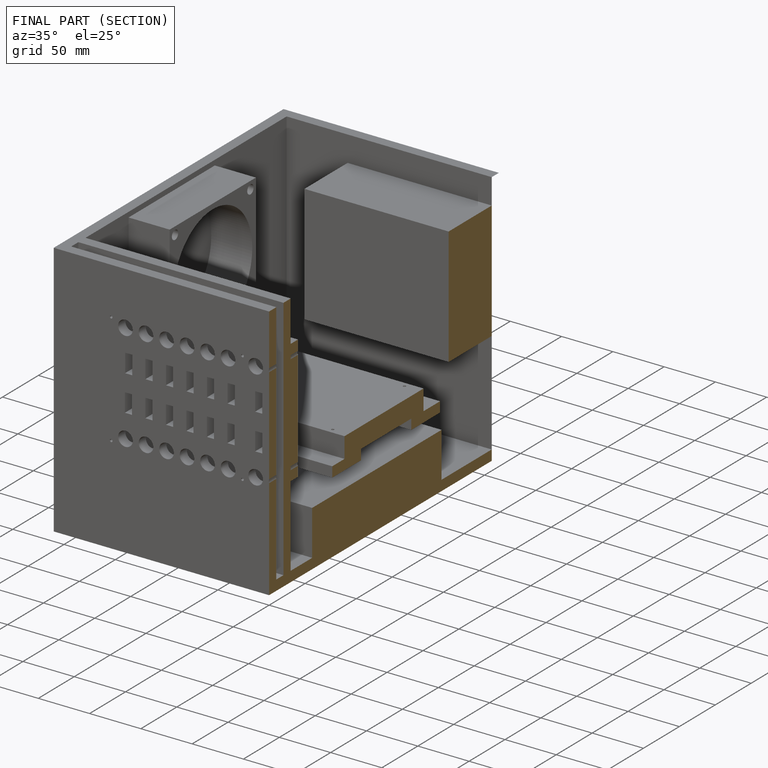
[diagram: finished part — half-section view (interior)]
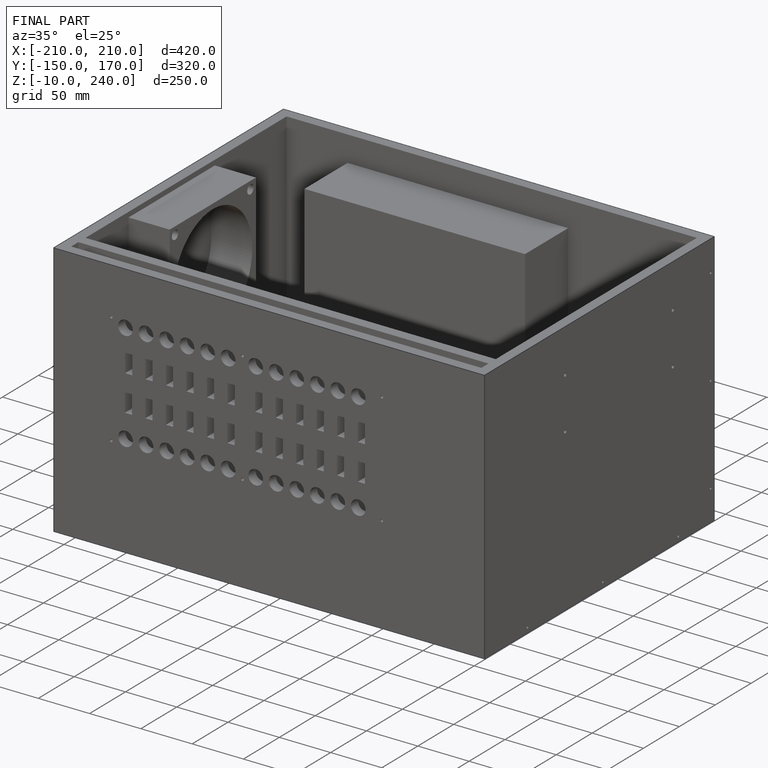
[diagram: finished part — iso view with bounding-box wireframe]
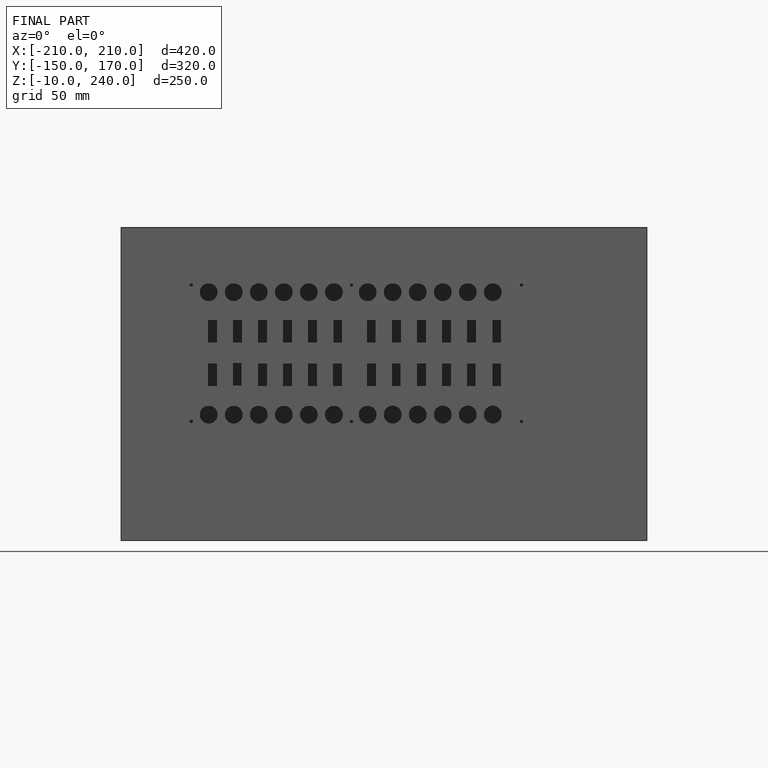
[diagram: finished part — front view with bounding-box wireframe]
